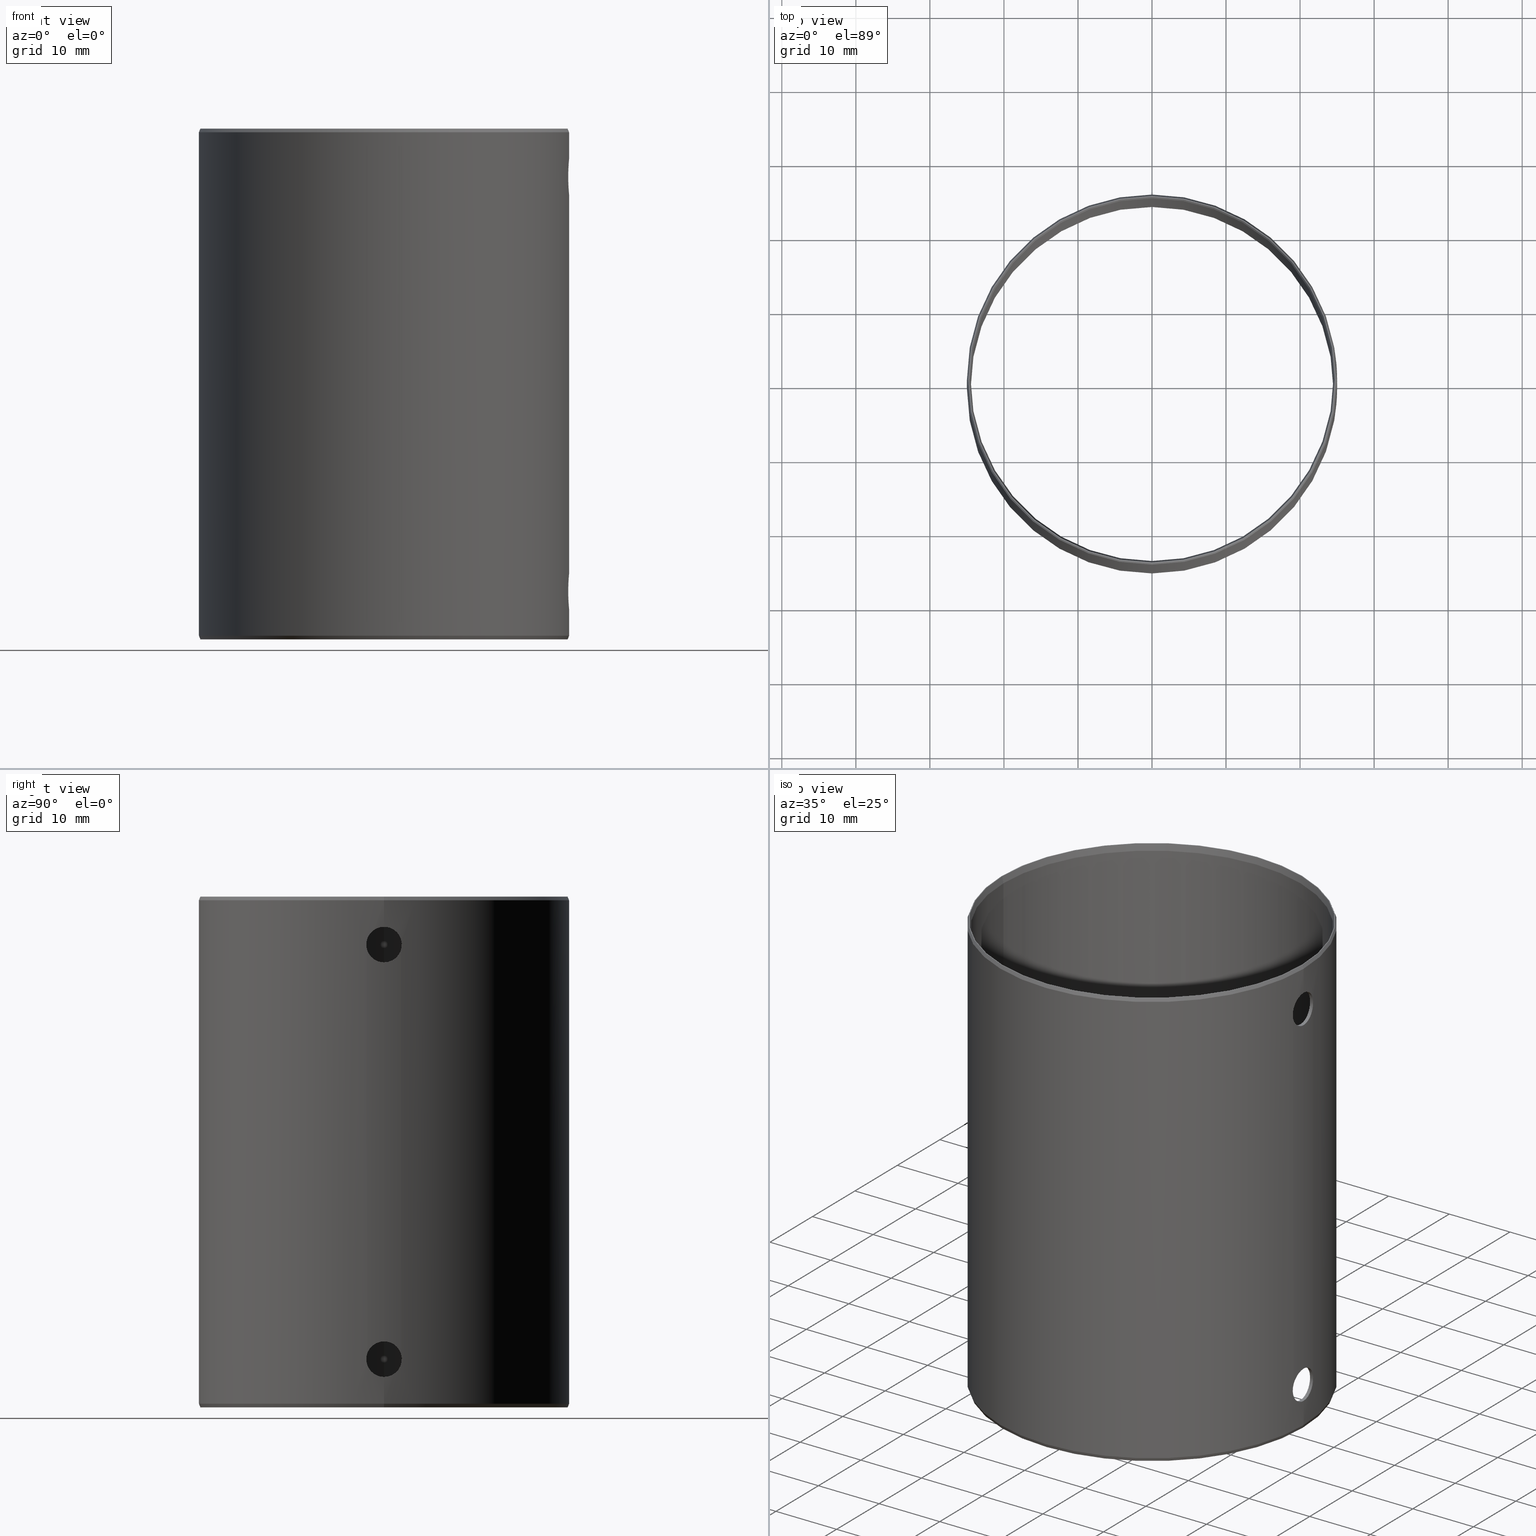
[diagram: canonical four-view strip — front | top / right | iso, engineering-drawing reading convention]
A machine part, canonical four-view strip (front | top / right | iso — engineering-drawing reading convention). The complete STEP part file that produces these views, byte-faithful:
ISO-10303-21;
HEADER;
FILE_DESCRIPTION (( 'STEP AP214' ),
    '1' );
FILE_NAME ('���.KRT741.STEP',
    '2014-06-30T17:47:19',
    ( '' ),
    ( '' ),
    'SwSTEP 2.0',
    'SolidWorks 2014',
    '' );
FILE_SCHEMA (( 'AUTOMOTIVE_DESIGN' ));
ENDSEC;

DATA;
#1 = AXIS2_PLACEMENT_3D ( 'NONE', #245, #699, #308 ) ;
#2 = DIRECTION ( 'NONE',  ( 1.000000000000000000, 0.0000000000000000000, 0.0000000000000000000 ) ) ;
#3 = CARTESIAN_POINT ( 'NONE',  ( 24.42580354938601100, -1.907319449440138600, 7.965276881055341800 ) ) ;
#4 = EDGE_CURVE ( 'NONE', #658, #528, #501, .T. ) ;
#5 = VECTOR ( 'NONE', #476, 1000.000000000000000 ) ;
#6 = CARTESIAN_POINT ( 'NONE',  ( 24.90680878649008200, -2.157434387432355400, 5.436881676382287600 ) ) ;
#7 = LINE ( 'NONE', #701, #413 ) ;
#8 = ORIENTED_EDGE ( 'NONE', *, *, #328, .T. ) ;
#9 = CARTESIAN_POINT ( 'NONE',  ( 24.38859995734895500, -2.336800860100901400, 7.130151552191206200 ) ) ;
#10 = ORIENTED_EDGE ( 'NONE', *, *, #564, .T. ) ;
#11 = CARTESIAN_POINT ( 'NONE',  ( 24.47082005790156200, -1.202507692141337600, 64.58292347193727800 ) ) ;
#12 = CARTESIAN_POINT ( 'NONE',  ( 24.45660832682248700, -1.463341451696374300, 64.40872384994622700 ) ) ;
#13 = CARTESIAN_POINT ( 'NONE',  ( 24.80000000000001100, 0.0000000000000000000, 0.0000000000000000000 ) ) ;
#14 = ADVANCED_FACE ( 'NONE', ( #311, #474 ), #86, .T. ) ;
#15 = CARTESIAN_POINT ( 'NONE',  ( 24.49844755136555500, -0.3158348504575804700, 60.11570415887334200 ) ) ;
#16 = CARTESIAN_POINT ( 'NONE',  ( 24.89083734895105200, -2.336804912568216000, 7.130137118677600600 ) ) ;
#17 = EDGE_CURVE ( 'NONE', #528, #645, #641, .T. ) ;
#18 = CIRCLE ( 'NONE', #264, 25.00000000000000000 ) ;
#19 = VERTEX_POINT ( 'NONE', #29 ) ;
#20 = DIRECTION ( 'NONE',  ( -1.000000000000000000, 0.0000000000000000000, 0.0000000000000000000 ) ) ;
#21 = DIRECTION ( 'NONE',  ( -1.000000000000000000, 0.0000000000000000000, 0.0000000000000000000 ) ) ;
#22 = CARTESIAN_POINT ( 'NONE',  ( 0.0000000000000000000, 0.0000000000000000000, 0.0000000000000000000 ) ) ;
#23 = EDGE_LOOP ( 'NONE', ( #432, #539, #485, #291 ) ) ;
#24 = CARTESIAN_POINT ( 'NONE',  ( 24.99852779915536900, 0.3123910132532942100, 4.115188051431481100 ) ) ;
#25 = ORIENTED_EDGE ( 'NONE', *, *, #207, .F. ) ;
#26 = CARTESIAN_POINT ( 'NONE',  ( 24.88452160933722700, 2.400121723904763600, 6.656665862864441500 ) ) ;
#27 = CARTESIAN_POINT ( 'NONE',  ( 24.41151110846013600, 2.082251539747878200, 61.29633365754183000 ) ) ;
#28 = CARTESIAN_POINT ( 'NONE',  ( 24.38955891432469900, 2.323864925475290100, 63.11976947958540800 ) ) ;
#29 = CARTESIAN_POINT ( 'NONE',  ( -24.50000000000000000, 0.0000000000000000000, 1.000000000000042600 ) ) ;
#30 = EDGE_CURVE ( 'NONE', #325, #302, #788, .T. ) ;
#31 = CARTESIAN_POINT ( 'NONE',  ( 24.92724166081458700, 1.907948605378058800, 5.035650817317736600 ) ) ;
#32 = CARTESIAN_POINT ( 'NONE',  ( 24.38215367992610500, 2.400121235163028600, 62.65668549765766900 ) ) ;
#33 = CARTESIAN_POINT ( 'NONE',  ( 25.00000000000000000, 3.061617015060971000E-015, 60.10000000000000100 ) ) ;
#34 = SURFACE_STYLE_FILL_AREA ( #617 ) ;
#35 = CONICAL_SURFACE ( 'NONE', #160, 24.50000000000000000, 0.1973955598498787500 ) ;
#36 = ORIENTED_EDGE ( 'NONE', *, *, #750, .T. ) ;
#37 = CARTESIAN_POINT ( 'NONE',  ( 24.43338947659767500, 1.808801199729553700, 8.085156302647970300 ) ) ;
#38 = CARTESIAN_POINT ( 'NONE',  ( 24.97770563932994000, 1.065398454173686100, 8.656234646903758500 ) ) ;
#39 = CARTESIAN_POINT ( 'NONE',  ( 24.91328647539418000, 2.082258795720676400, 61.29634526660252900 ) ) ;
#40 = CARTESIAN_POINT ( 'NONE',  ( 24.42559035520906400, 1.910012036205030100, 7.961651414167699900 ) ) ;
#41 = STYLED_ITEM ( 'NONE', ( #286 ), #584 ) ;
#42 = FACE_OUTER_BOUND ( 'NONE', #478, .T. ) ;
#43 = EDGE_CURVE ( 'NONE', #80, #766, #355, .T. ) ;
#44 = CARTESIAN_POINT ( 'NONE',  ( 24.50000000000000000, 3.000384657911015500E-015, 69.00000000000000000 ) ) ;
#45 = CARTESIAN_POINT ( 'NONE',  ( 0.0000000000000000000, 0.0000000000000000000, 0.4999999999999726900 ) ) ;
#46 = CARTESIAN_POINT ( 'NONE',  ( 24.90682330235476600, -2.157258275708513500, 63.56332931344044100 ) ) ;
#47 = LINE ( 'NONE', #409, #601 ) ;
#48 = ORIENTED_EDGE ( 'NONE', *, *, #564, .F. ) ;
#49 = ORIENTED_EDGE ( 'NONE', *, *, #500, .T. ) ;
#50 = DIRECTION ( 'NONE',  ( 1.000000000000000000, 0.0000000000000000000, 0.0000000000000000000 ) ) ;
#51 = EDGE_CURVE ( 'NONE', #217, #80, #454, .T. ) ;
#52 = CARTESIAN_POINT ( 'NONE',  ( 24.50000000000000000, 3.000384657911015500E-015, 68.00000000000015600 ) ) ;
#53 = CARTESIAN_POINT ( 'NONE',  ( -24.50000000000000000, 0.0000000000000000000, 68.00000000000015600 ) ) ;
#54 = CARTESIAN_POINT ( 'NONE',  ( 24.50000000000000000, -7.960204194457795500E-016, 8.900000000000000400 ) ) ;
#55 = ADVANCED_FACE ( 'NONE', ( #287 ), #399, .F. ) ;
#56 = DIRECTION ( 'NONE',  ( -0.3713906763541026100, 4.548224030302224200E-017, 0.9284766908852598600 ) ) ;
#57 = VECTOR ( 'NONE', #728, 1000.000000000000000 ) ;
#58 = EDGE_LOOP ( 'NONE', ( #372, #586 ) ) ;
#59 = EDGE_LOOP ( 'NONE', ( #292, #191, #768, #484 ) ) ;
#60 = CARTESIAN_POINT ( 'NONE',  ( 25.00000000000000000, -7.960204194457795500E-016, 8.900000000000000400 ) ) ;
#61 = CARTESIAN_POINT ( 'NONE',  ( 24.41146949563054100, -2.082763447756365200, 7.702913230893200200 ) ) ;
#62 = DIRECTION ( 'NONE',  ( 0.0000000000000000000, 0.0000000000000000000, -1.000000000000000000 ) ) ;
#63 = ORIENTED_EDGE ( 'NONE', *, *, #312, .T. ) ;
#64 = CARTESIAN_POINT ( 'NONE',  ( 24.38859995734896600, -2.336800860100908500, 63.13015155219122200 ) ) ;
#65 = CARTESIAN_POINT ( 'NONE',  ( 24.93478284463213500, -1.808009764021271300, 8.086060030250440200 ) ) ;
#66 = CARTESIAN_POINT ( 'NONE',  ( 24.49254669009270200, -0.6235709369443246400, 60.17711868633463000 ) ) ;
#67 = CARTESIAN_POINT ( 'NONE',  ( 24.94983958672400000, -1.586757515342943000, 8.307397663453445000 ) ) ;
#68 = FACE_OUTER_BOUND ( 'NONE', #667, .T. ) ;
#69 = ADVANCED_FACE ( 'NONE', ( #527 ), #431, .T. ) ;
#70 = VERTEX_POINT ( 'NONE', #60 ) ;
#71 = EDGE_LOOP ( 'NONE', ( #464, #117, #318, #243 ) ) ;
#72 = CARTESIAN_POINT ( 'NONE',  ( 24.41146949563054500, -2.082763447756369200, 63.70291323089320900 ) ) ;
#73 = CARTESIAN_POINT ( 'NONE',  ( 24.89184912457955800, -2.323100469349337800, 5.877229057580037400 ) ) ;
#74 = VERTEX_POINT ( 'NONE', #77 ) ;
#75 = DIRECTION ( 'NONE',  ( 1.000000000000000000, 0.0000000000000000000, 0.0000000000000000000 ) ) ;
#76 = FACE_OUTER_BOUND ( 'NONE', #71, .T. ) ;
#77 = CARTESIAN_POINT ( 'NONE',  ( 24.69999999999996700, 0.0000000000000000000, 69.00000000000000000 ) ) ;
#78 = FACE_OUTER_BOUND ( 'NONE', #510, .T. ) ;
#79 = ORIENTED_EDGE ( 'NONE', *, *, #787, .T. ) ;
#80 = VERTEX_POINT ( 'NONE', #637 ) ;
#81 = PRESENTATION_LAYER_ASSIGNMENT (  '', '', ( #41 ) ) ;
#82 = ORIENTED_EDGE ( 'NONE', *, *, #517, .T. ) ;
#83 = EDGE_CURVE ( 'NONE', #217, #506, #183, .T. ) ;
#84 = CARTESIAN_POINT ( 'NONE',  ( 24.50000000000000400, 0.1566461560698938200, 4.099999999999999600 ) ) ;
#85 = CARTESIAN_POINT ( 'NONE',  ( 24.38369107138436600, 2.384647135837939300, 62.81292241405778000 ) ) ;
#86 = PLANE ( 'NONE',  #544 ) ;
#87 = DIRECTION ( 'NONE',  ( 0.0000000000000000000, 0.0000000000000000000, 1.000000000000000000 ) ) ;
#88 = FACE_OUTER_BOUND ( 'NONE', #201, .T. ) ;
#89 = CARTESIAN_POINT ( 'NONE',  ( 24.90680033869109900, 2.157531980925978800, 7.562927324292854100 ) ) ;
#90 = CARTESIAN_POINT ( 'NONE',  ( 24.41150751000920800, -2.082281741112948800, 5.296445418222805100 ) ) ;
#91 = ORIENTED_EDGE ( 'NONE', *, *, #83, .F. ) ;
#92 = CARTESIAN_POINT ( 'NONE',  ( 24.50000000000000000, 3.000384675787022100E-015, 4.099999999999999600 ) ) ;
#93 = DIRECTION ( 'NONE',  ( -1.000000000000000000, 0.0000000000000000000, 0.0000000000000000000 ) ) ;
#94 = CARTESIAN_POINT ( 'NONE',  ( 24.38955891432469200, 2.323864925475296800, 7.119769479585399600 ) ) ;
#95 = EDGE_CURVE ( 'NONE', #361, #528, #7, .T. ) ;
#96 = CARTESIAN_POINT ( 'NONE',  ( 24.89619328610674400, 2.276670028200189900, 61.72444238341019200 ) ) ;
#97 = STYLED_ITEM ( 'NONE', ( #412 ), #491 ) ;
#98 = VECTOR ( 'NONE', #530, 1000.000000000000000 ) ;
#99 = CARTESIAN_POINT ( 'NONE',  ( 24.38964322231983000, 2.322982828804307100, 5.876929524469598000 ) ) ;
#100 = ORIENTED_EDGE ( 'NONE', *, *, #577, .T. ) ;
#101 = ORIENTED_EDGE ( 'NONE', *, *, #51, .T. ) ;
#102 = SURFACE_STYLE_USAGE ( .BOTH. , #271 ) ;
#103 =( NAMED_UNIT ( * ) SI_UNIT ( $, .STERADIAN. ) SOLID_ANGLE_UNIT ( ) );
#104 = CONICAL_SURFACE ( 'NONE', #616, 24.50000000000000000, 0.1973955598498787500 ) ;
#105 = DIRECTION ( 'NONE',  ( -0.0000000000000000000, -0.0000000000000000000, -1.000000000000000000 ) ) ;
#106 = ORIENTED_EDGE ( 'NONE', *, *, #598, .T. ) ;
#107 = DIRECTION ( 'NONE',  ( 0.0000000000000000000, 0.0000000000000000000, 1.000000000000000000 ) ) ;
#108 = EDGE_CURVE ( 'NONE', #487, #289, #758, .T. ) ;
#109 = CARTESIAN_POINT ( 'NONE',  ( 24.50000000000000000, 3.000384657911015500E-015, 69.00000000000000000 ) ) ;
#110 = AXIS2_PLACEMENT_3D ( 'NONE', #22, #513, #434 ) ;
#111 = DIRECTION ( 'NONE',  ( 1.000000000000000000, 0.0000000000000000000, 0.0000000000000000000 ) ) ;
#112 = EDGE_LOOP ( 'NONE', ( #458, #82, #344, #498, #562, #595, #268, #133 ) ) ;
#113 = ORIENTED_EDGE ( 'NONE', *, *, #707, .T. ) ;
#114 = DIRECTION ( 'NONE',  ( 0.0000000000000000000, 0.0000000000000000000, 1.000000000000000000 ) ) ;
#115 = CARTESIAN_POINT ( 'NONE',  ( 24.93469087965861100, -1.809364586544539100, 60.91528846702932000 ) ) ;
#116 = CONICAL_SURFACE ( 'NONE', #548, 25.00000000000000000, 0.3805063771123636800 ) ;
#117 = ORIENTED_EDGE ( 'NONE', *, *, #312, .F. ) ;
#118 = ADVANCED_FACE ( 'NONE', ( #504 ), #549, .T. ) ;
#119 = ORIENTED_EDGE ( 'NONE', *, *, #163, .T. ) ;
#120 = CARTESIAN_POINT ( 'NONE',  ( 24.95743015555597900, -1.464107681211960900, 60.59190603845464600 ) ) ;
#121 = APPLICATION_CONTEXT ( 'automotive_design' ) ;
#122 = MECHANICAL_DESIGN_GEOMETRIC_PRESENTATION_REPRESENTATION (  '', ( #41 ), #152 ) ;
#123 = CARTESIAN_POINT ( 'NONE',  ( 24.95747812043215700, -1.463332940315724300, 8.408730474432315900 ) ) ;
#124 = CARTESIAN_POINT ( 'NONE',  ( 25.00000000000000000, -0.1566809821527087900, 4.099999999999999600 ) ) ;
#125 = CARTESIAN_POINT ( 'NONE',  ( 24.42570443494877700, -1.908548929719064100, 61.03648304978811000 ) ) ;
#126 = ADVANCED_FACE ( 'NONE', ( #78 ), #780, .F. ) ;
#127 = CARTESIAN_POINT ( 'NONE',  ( 24.49259480514857400, -0.6215738987710169900, 64.82338609290462700 ) ) ;
#128 = CARTESIAN_POINT ( 'NONE',  ( 24.92729154330252700, -1.907322935467900700, 7.965272405578529600 ) ) ;
#129 = CARTESIAN_POINT ( 'NONE',  ( 24.42575234937275400, 1.907948699616059700, 5.035651715478032900 ) ) ;
#130 = CARTESIAN_POINT ( 'NONE',  ( 24.94993860879596400, -1.585298990248902500, 4.691150099845883900 ) ) ;
#131 = EDGE_CURVE ( 'NONE', #302, #325, #224, .T. ) ;
#132 = VECTOR ( 'NONE', #671, 1000.000000000000000 ) ;
#133 = ORIENTED_EDGE ( 'NONE', *, *, #787, .F. ) ;
#134 = DIRECTION ( 'NONE',  ( 1.000000000000000000, 0.0000000000000000000, 0.0000000000000000000 ) ) ;
#135 = CARTESIAN_POINT ( 'NONE',  ( 24.93488666603596100, 1.806581411025498500, 4.912317553406793100 ) ) ;
#136 = CARTESIAN_POINT ( 'NONE',  ( 24.43338947659767900, 1.808801199729551000, 64.08515630264796000 ) ) ;
#137 = CIRCLE ( 'NONE', #110, 24.70000000000000300 ) ;
#138 = ORIENTED_EDGE ( 'NONE', *, *, #226, .T. ) ;
#139 = DIRECTION ( 'NONE',  ( 0.0000000000000000000, 0.0000000000000000000, -1.000000000000000000 ) ) ;
#140 = CARTESIAN_POINT ( 'NONE',  ( 24.47196524663253200, 1.206838727512015400, 60.40208118236046900 ) ) ;
#141 = EDGE_CURVE ( 'NONE', #289, #552, #722, .T. ) ;
#142 = CARTESIAN_POINT ( 'NONE',  ( 24.99273967167542700, 0.6220482088764666100, 4.176646346112978100 ) ) ;
#143 = CARTESIAN_POINT ( 'NONE',  ( 24.49254669009269500, -0.6235709369443240800, 4.177118686334628400 ) ) ;
#144 = CARTESIAN_POINT ( 'NONE',  ( 0.0000000000000000000, 0.0000000000000000000, 68.50000000000002800 ) ) ;
#145 = CARTESIAN_POINT ( 'NONE',  ( 24.42570443494878800, -1.908548929719057200, 5.036483049788117200 ) ) ;
#146 = CARTESIAN_POINT ( 'NONE',  ( 24.44875390968204000, 1.587676087577083000, 8.306589860733083700 ) ) ;
#147 = CIRCLE ( 'NONE', #514, 24.80000000000001500 ) ;
#148 = CARTESIAN_POINT ( 'NONE',  ( 24.88602797503628800, 2.384647443085708800, 62.81291804850886300 ) ) ;
#149 = ORIENTED_EDGE ( 'NONE', *, *, #141, .F. ) ;
#150 = CARTESIAN_POINT ( 'NONE',  ( 24.89185976614051700, 2.322985733890047500, 61.87694049442362900 ) ) ;
#151 = DIRECTION ( 'NONE',  ( 1.000000000000000000, 0.0000000000000000000, 0.0000000000000000000 ) ) ;
#152 =( GEOMETRIC_REPRESENTATION_CONTEXT ( 3 ) GLOBAL_UNCERTAINTY_ASSIGNED_CONTEXT ( ( #604 ) ) GLOBAL_UNIT_ASSIGNED_CONTEXT ( ( #222, #545, #742 ) ) REPRESENTATION_CONTEXT ( 'NONE', 'WORKASPACE' ) );
#153 = FACE_BOUND ( 'NONE', #58, .T. ) ;
#154 = CARTESIAN_POINT ( 'NONE',  ( 24.99274324011628000, -0.6215614222012457700, 64.82338924481722100 ) ) ;
#155 = EDGE_CURVE ( 'NONE', #19, #433, #570, .T. ) ;
#156 = CARTESIAN_POINT ( 'NONE',  ( 0.0000000000000000000, 0.0000000000000000000, 0.4999999999999726900 ) ) ;
#157 = CARTESIAN_POINT ( 'NONE',  ( 24.98843731712242200, -0.7740445757105877100, 64.77719177326763100 ) ) ;
#158 =( NAMED_UNIT ( * ) PLANE_ANGLE_UNIT ( ) SI_UNIT ( $, .RADIAN. ) );
#159 = CARTESIAN_POINT ( 'NONE',  ( 24.88452789115881800, -2.400056590455626800, 62.34423272371462600 ) ) ;
#160 = AXIS2_PLACEMENT_3D ( 'NONE', #493, #752, #693 ) ;
#161 = LINE ( 'NONE', #338, #547 ) ;
#162 = ORIENTED_EDGE ( 'NONE', *, *, #707, .F. ) ;
#163 = EDGE_CURVE ( 'NONE', #766, #506, #333, .T. ) ;
#164 = DIRECTION ( 'NONE',  ( 1.000000000000000000, 0.0000000000000000000, -0.0000000000000000000 ) ) ;
#165 = ADVANCED_FACE ( 'NONE', ( #200 ), #536, .F. ) ;
#166 = CARTESIAN_POINT ( 'NONE',  ( 24.97131838510964000, -1.204238091543308600, 60.41811515997020600 ) ) ;
#167 = CARTESIAN_POINT ( 'NONE',  ( 24.90680878649008500, -2.157434387432358500, 61.43688167638229200 ) ) ;
#168 = CARTESIAN_POINT ( 'NONE',  ( 24.91314775540727300, 2.083908987949354000, 63.70078858769549900 ) ) ;
#169 = EDGE_LOOP ( 'NONE', ( #101, #10 ) ) ;
#170 = ORIENTED_EDGE ( 'NONE', *, *, #30, .T. ) ;
#171 = B_SPLINE_CURVE_WITH_KNOTS ( 'NONE', 3,
 ( #481, #421, #489, #687, #298, #486, #282, #123, #67, #65, #128, #354, #366, #16, #359, #682, #553, #73, #618, #6, #496, #290, #296, #130, #228, #749, #220, #285, #175, #626, #124, #566 ),
 .UNSPECIFIED., .F., .F.,
 ( 4, 2, 2, 2, 2, 2, 2, 2, 2, 2, 2, 2, 2, 2, 2, 4 ),
 ( 0.0000000000000000000, 0.0004692384122092192500, 0.0009384768244184385100, 0.001407715236627657700, 0.001876953648836877000, 0.002346192061046095700, 0.002815430473255312400, 0.003753907297673744100, 0.004223145709882960800, 0.004692384122092177500, 0.005161622534301394200, 0.005630860946510611800, 0.006100099358719829300, 0.006569337770929046900, 0.007038576183138264500, 0.007507814595347481200 ),
 .UNSPECIFIED. ) ;
#172 = CARTESIAN_POINT ( 'NONE',  ( 0.0000000000000000000, 0.0000000000000000000, 69.00000000000000000 ) ) ;
#173 = CARTESIAN_POINT ( 'NONE',  ( 24.43335481541210900, -1.809360301352433300, 60.91528340492516900 ) ) ;
#174 = AXIS2_PLACEMENT_3D ( 'NONE', #622, #754, #2 ) ;
#175 = CARTESIAN_POINT ( 'NONE',  ( 24.99269610355392100, -0.6235574177795527600, 4.177115368944690500 ) ) ;
#176 = EDGE_CURVE ( 'NONE', #233, #433, #463, .T. ) ;
#177 = CARTESIAN_POINT ( 'NONE',  ( 24.50000000000000000, -0.1586759503832634300, 64.90000000000002000 ) ) ;
#178 = FACE_OUTER_BOUND ( 'NONE', #23, .T. ) ;
#179 = ADVANCED_FACE ( 'NONE', ( #42 ), #340, .F. ) ;
#180 = DIRECTION ( 'NONE',  ( -0.1961161351381781600, 0.0000000000000000000, -0.9805806756909213300 ) ) ;
#181 = ORIENTED_EDGE ( 'NONE', *, *, #362, .F. ) ;
#182 = CLOSED_SHELL ( 'NONE', ( #229, #126, #275, #179, #737, #284, #411, #349, #69, #490, #14, #755, #118, #627, #55, #345, #613, #165 ) ) ;
#183 = LINE ( 'NONE', #784, #98 ) ;
#184 = EDGE_CURVE ( 'NONE', #433, #233, #137, .T. ) ;
#185 = CARTESIAN_POINT ( 'NONE',  ( 24.88452160933723100, 2.400121723904757900, 62.65666586286443600 ) ) ;
#186 = CARTESIAN_POINT ( 'NONE',  ( 24.42559035520906000, 1.910012036205026100, 63.96165141416768300 ) ) ;
#187 = CARTESIAN_POINT ( 'NONE',  ( 24.50000000000000700, 0.1566461560698932900, 60.10000000000000100 ) ) ;
#188 = CARTESIAN_POINT ( 'NONE',  ( 24.88602797503628800, 2.384647443085714500, 6.812918048508857200 ) ) ;
#189 = CARTESIAN_POINT ( 'NONE',  ( 25.00000000000000000, -6.938893903907228400E-015, 62.50000000000000000 ) ) ;
#190 = CARTESIAN_POINT ( 'NONE',  ( 24.38963235678006900, -2.323097617441011800, 5.877218032983101600 ) ) ;
#191 = ORIENTED_EDGE ( 'NONE', *, *, #51, .F. ) ;
#192 = ORIENTED_EDGE ( 'NONE', *, *, #388, .T. ) ;
#193 = CARTESIAN_POINT ( 'NONE',  ( 24.97128641964937400, 1.205016375846084600, 8.581538389534465200 ) ) ;
#194 = CARTESIAN_POINT ( 'NONE',  ( 24.50000000000000000, -7.960204194457795500E-016, 8.900000000000000400 ) ) ;
#195 = EDGE_CURVE ( 'NONE', #506, #440, #301, .T. ) ;
#196 = CARTESIAN_POINT ( 'NONE',  ( 24.49259097793635200, 0.6220691795854884600, 4.176651443060187300 ) ) ;
#197 = CARTESIAN_POINT ( 'NONE',  ( 24.38373468376589800, 2.384203977574828000, 6.183713051622882900 ) ) ;
#198 = CARTESIAN_POINT ( 'NONE',  ( 24.50000000000000700, 0.3172775841286012400, 8.900000000000002100 ) ) ;
#199 = CIRCLE ( 'NONE', #416, 25.00000000000000000 ) ;
#200 = FACE_OUTER_BOUND ( 'NONE', #795, .T. ) ;
#201 = EDGE_LOOP ( 'NONE', ( #619, #373, #572, #389 ) ) ;
#202 = ORIENTED_EDGE ( 'NONE', *, *, #238, .F. ) ;
#203 = PLANE ( 'NONE',  #310 ) ;
#204 = CARTESIAN_POINT ( 'NONE',  ( 24.97774248692006800, -1.064671223454409100, 64.65666932174893600 ) ) ;
#205 =( GEOMETRIC_REPRESENTATION_CONTEXT ( 3 ) GLOBAL_UNCERTAINTY_ASSIGNED_CONTEXT ( ( #597 ) ) GLOBAL_UNIT_ASSIGNED_CONTEXT ( ( #537, #158, #210 ) ) REPRESENTATION_CONTEXT ( 'NONE', 'WORKASPACE' ) );
#206 = CARTESIAN_POINT ( 'NONE',  ( 24.93478284463212800, -1.808009764021275100, 64.08606003025042200 ) ) ;
#207 = EDGE_CURVE ( 'NONE', #361, #552, #535, .T. ) ;
#208 = FACE_OUTER_BOUND ( 'NONE', #234, .T. ) ;
#209 = ORIENTED_EDGE ( 'NONE', *, *, #606, .T. ) ;
#210 =( NAMED_UNIT ( * ) SI_UNIT ( $, .STERADIAN. ) SOLID_ANGLE_UNIT ( ) );
#211 = PRODUCT_DEFINITION_CONTEXT ( 'detailed design', #417, 'design' ) ;
#212 = CARTESIAN_POINT ( 'NONE',  ( 0.0000000000000000000, 0.0000000000000000000, 69.00000000000000000 ) ) ;
#213 = CARTESIAN_POINT ( 'NONE',  ( 25.00000000000000000, 3.061616997868383000E-015, 69.00000000000000000 ) ) ;
#214 = DIRECTION ( 'NONE',  ( 1.000000000000000000, 0.0000000000000000000, 0.0000000000000000000 ) ) ;
#215 = CARTESIAN_POINT ( 'NONE',  ( 24.97777575192123900, -1.063896460731817500, 60.34294669262610000 ) ) ;
#216 = FACE_OUTER_BOUND ( 'NONE', #563, .T. ) ;
#217 = VERTEX_POINT ( 'NONE', #759 ) ;
#218 = APPLICATION_PROTOCOL_DEFINITION ( 'draft international standard', 'automotive_design', 1998, #417 ) ;
#219 = ORIENTED_EDGE ( 'NONE', *, *, #639, .F. ) ;
#220 = CARTESIAN_POINT ( 'NONE',  ( 24.97777575192123600, -1.063896460731816000, 4.342946692626102700 ) ) ;
#221 = CARTESIAN_POINT ( 'NONE',  ( 24.45660832682250100, -1.463341451696367900, 8.408723849946225600 ) ) ;
#222 =( LENGTH_UNIT ( ) NAMED_UNIT ( * ) SI_UNIT ( .MILLI., .METRE. ) );
#223 = VERTEX_POINT ( 'NONE', #33 ) ;
#224 = B_SPLINE_CURVE_WITH_KNOTS ( 'NONE', 3,
 ( #297, #177, #628, #127, #227, #565, #11, #12, #235, #625, #753, #72, #293, #64, #556, #488, #621, #288, #424, #492, #558, #125, #173, #561, #692, #230, #365, #368, #66, #15, #495, #363 ),
 .UNSPECIFIED., .F., .F.,
 ( 4, 2, 2, 2, 2, 2, 2, 2, 2, 2, 2, 2, 2, 2, 2, 4 ),
 ( 0.0000000000000000000, 0.0004692495845450792600, 0.0009384991690901587300, 0.001407748753635238100, 0.001876998338180317900, 0.002346247922725397000, 0.002815497507270476200, 0.003753996676360634900, 0.004223246260905714500, 0.004692495845450793200, 0.005161745429995872800, 0.005630995014540951500, 0.006100244599086031100, 0.006569494183631110700, 0.007038743768176189400, 0.007507993352721268100 ),
 .UNSPECIFIED. ) ;
#225 = CARTESIAN_POINT ( 'NONE',  ( 24.92708216892714300, 1.910021543429558900, 63.96163867150225700 ) ) ;
#226 = EDGE_CURVE ( 'NONE', #74, #242, #609, .T. ) ;
#227 = CARTESIAN_POINT ( 'NONE',  ( 24.48820078453336200, -0.7740593033462914700, 64.77718672583307600 ) ) ;
#228 = CARTESIAN_POINT ( 'NONE',  ( 24.95743015555597900, -1.464107681211956400, 4.591906038454635700 ) ) ;
#229 = ADVANCED_FACE ( 'NONE', ( #632 ), #438, .F. ) ;
#230 = CARTESIAN_POINT ( 'NONE',  ( 24.47073192606200800, -1.204247393120301500, 60.41812067930364100 ) ) ;
#231 = CARTESIAN_POINT ( 'NONE',  ( 24.97128641964937400, 1.205016375846076800, 64.58153838953445800 ) ) ;
#232 = LINE ( 'NONE', #44, #132 ) ;
#233 = VERTEX_POINT ( 'NONE', #378 ) ;
#234 = EDGE_LOOP ( 'NONE', ( #353, #673, #369, #533, #202, #341, #263, #529 ) ) ;
#235 = CARTESIAN_POINT ( 'NONE',  ( 24.44881354310747700, -1.586761734104943100, 64.30739358407541300 ) ) ;
#236 = CARTESIAN_POINT ( 'NONE',  ( 24.93472474480771000, 1.808807287848826600, 64.08515009080852600 ) ) ;
#237 = AXIS2_PLACEMENT_3D ( 'NONE', #375, #429, #499 ) ;
#238 = EDGE_CURVE ( 'NONE', #361, #70, #694, .T. ) ;
#239 = DIRECTION ( 'NONE',  ( -1.000000000000000000, 0.0000000000000000000, 0.0000000000000000000 ) ) ;
#240 = LINE ( 'NONE', #634, #676 ) ;
#241 = EDGE_LOOP ( 'NONE', ( #48, #443, #304, #91 ) ) ;
#242 = VERTEX_POINT ( 'NONE', #395 ) ;
#243 = ORIENTED_EDGE ( 'NONE', *, *, #388, .F. ) ;
#244 = DIRECTION ( 'NONE',  ( 1.000000000000000000, 0.0000000000000000000, 0.0000000000000000000 ) ) ;
#245 = CARTESIAN_POINT ( 'NONE',  ( 25.00000000000000000, -7.960204194457795500E-016, 6.500000000000000000 ) ) ;
#246 = DIRECTION ( 'NONE',  ( -1.000000000000000000, 0.0000000000000000000, 0.0000000000000000000 ) ) ;
#247 = CARTESIAN_POINT ( 'NONE',  ( 24.38964322231983300, 2.322982828804302600, 61.87692952446958800 ) ) ;
#248 = SURFACE_STYLE_FILL_AREA ( #734 ) ;
#249 = CARTESIAN_POINT ( 'NONE',  ( 24.89177715393288200, 2.323867879430600700, 7.119757381439341300 ) ) ;
#250 = AXIS2_PLACEMENT_3D ( 'NONE', #674, #274, #214 ) ;
#251 = CARTESIAN_POINT ( 'NONE',  ( 24.42575234937275400, 1.907948699616057300, 61.03565171547803200 ) ) ;
#252 = CARTESIAN_POINT ( 'NONE',  ( 24.50000000000000700, 0.3172775841285949700, 64.90000000000002000 ) ) ;
#253 = ORIENTED_EDGE ( 'NONE', *, *, #108, .T. ) ;
#254 = DIRECTION ( 'NONE',  ( 1.000000000000000000, 0.0000000000000000000, 0.0000000000000000000 ) ) ;
#255 = DIRECTION ( 'NONE',  ( -0.0000000000000000000, -0.0000000000000000000, -1.000000000000000000 ) ) ;
#256 = CARTESIAN_POINT ( 'NONE',  ( 24.47732152897452500, -1.063902268404216300, 4.342949835593287000 ) ) ;
#257 = CARTESIAN_POINT ( 'NONE',  ( 24.92708216892713900, 1.910021543429563300, 7.961638671502244700 ) ) ;
#258 = CARTESIAN_POINT ( 'NONE',  ( 24.49353724681168700, 0.6324934365665536600, 8.836158783216284000 ) ) ;
#259 = CARTESIAN_POINT ( 'NONE',  ( 24.47196524663252900, 1.206838727512015800, 4.402081182360468000 ) ) ;
#260 = CIRCLE ( 'NONE', #250, 24.50000000000000000 ) ;
#261 = ORIENTED_EDGE ( 'NONE', *, *, #95, .T. ) ;
#262 = CARTESIAN_POINT ( 'NONE',  ( 24.40489148465764700, 2.157526364655349300, 7.562937783976222400 ) ) ;
#263 = ORIENTED_EDGE ( 'NONE', *, *, #469, .T. ) ;
#264 = AXIS2_PLACEMENT_3D ( 'NONE', #461, #466, #725 ) ;
#265 =( LENGTH_UNIT ( ) NAMED_UNIT ( * ) SI_UNIT ( .MILLI., .METRE. ) );
#266 = EDGE_CURVE ( 'NONE', #528, #658, #540, .T. ) ;
#267 = DIRECTION ( 'NONE',  ( -1.000000000000000000, 0.0000000000000000000, 0.0000000000000000000 ) ) ;
#268 = ORIENTED_EDGE ( 'NONE', *, *, #362, .T. ) ;
#269 = CARTESIAN_POINT ( 'NONE',  ( 25.00000000000000000, 3.061616997868383000E-015, 0.4999999999999726900 ) ) ;
#270 = CARTESIAN_POINT ( 'NONE',  ( 25.00000000000000000, 3.061616997868383000E-015, 69.00000000000000000 ) ) ;
#271 = SURFACE_SIDE_STYLE ('',( #248 ) ) ;
#272 = CARTESIAN_POINT ( 'NONE',  ( 0.0000000000000000000, 0.0000000000000000000, 68.00000000000015600 ) ) ;
#273 = CARTESIAN_POINT ( 'NONE',  ( 0.0000000000000000000, 0.0000000000000000000, 69.00000000000000000 ) ) ;
#274 = DIRECTION ( 'NONE',  ( 0.0000000000000000000, 0.0000000000000000000, 1.000000000000000000 ) ) ;
#275 = ADVANCED_FACE ( 'NONE', ( #178 ), #104, .F. ) ;
#276 = EDGE_CURVE ( 'NONE', #223, #406, #448, .T. ) ;
#277 = ORIENTED_EDGE ( 'NONE', *, *, #469, .F. ) ;
#278 = CARTESIAN_POINT ( 'NONE',  ( 0.0000000000000000000, 0.0000000000000000000, 0.4999999999999726900 ) ) ;
#279 = CARTESIAN_POINT ( 'NONE',  ( 24.98846425448591900, -0.7731826399380984400, 60.22251382983150600 ) ) ;
#280 = CARTESIAN_POINT ( 'NONE',  ( 24.49845975203917400, -0.3146810743289630800, 8.884418769804302200 ) ) ;
#281 = FILL_AREA_STYLE_COLOUR ( '', #783 ) ;
#282 = CARTESIAN_POINT ( 'NONE',  ( 24.97140484761392900, -1.202496304620575200, 8.582930136997767100 ) ) ;
#283 = CARTESIAN_POINT ( 'NONE',  ( 24.44881354310748700, -1.586761734104935200, 8.307393584075436300 ) ) ;
#284 = ADVANCED_FACE ( 'NONE', ( #710 ), #739, .T. ) ;
#285 = CARTESIAN_POINT ( 'NONE',  ( 24.98846425448591900, -0.7731826399380978800, 4.222513829831515700 ) ) ;
#286 = PRESENTATION_STYLE_ASSIGNMENT (( #480 ) ) ;
#287 = FACE_OUTER_BOUND ( 'NONE', #573, .T. ) ;
#288 = CARTESIAN_POINT ( 'NONE',  ( 24.38963235678005500, -2.323097617441018500, 61.87721803298310200 ) ) ;
#289 = VERTEX_POINT ( 'NONE', #13 ) ;
#290 = CARTESIAN_POINT ( 'NONE',  ( 24.92719432543051300, -1.908553743024077800, 5.036489025316491600 ) ) ;
#291 = ORIENTED_EDGE ( 'NONE', *, *, #680, .F. ) ;
#292 = ORIENTED_EDGE ( 'NONE', *, *, #43, .F. ) ;
#293 = CARTESIAN_POINT ( 'NONE',  ( 24.40491494433868200, -2.157252441054829700, 63.56334106249468600 ) ) ;
#294 = ORIENTED_EDGE ( 'NONE', *, *, #651, .T. ) ;
#295 = AXIS2_PLACEMENT_3D ( 'NONE', #374, #300, #568 ) ;
#296 = CARTESIAN_POINT ( 'NONE',  ( 24.93469087965861100, -1.809364586544532900, 4.915288467029322200 ) ) ;
#297 = CARTESIAN_POINT ( 'NONE',  ( 24.50000000000000000, -6.938893903907228400E-015, 64.90000000000000600 ) ) ;
#298 = CARTESIAN_POINT ( 'NONE',  ( 24.98843731712241800, -0.7740445757105802700, 8.777191773267629700 ) ) ;
#299 = VECTOR ( 'NONE', #105, 1000.000000000000000 ) ;
#300 = DIRECTION ( 'NONE',  ( -0.0000000000000000000, -0.0000000000000000000, -1.000000000000000000 ) ) ;
#301 = LINE ( 'NONE', #449, #430 ) ;
#302 = VERTEX_POINT ( 'NONE', #691 ) ;
#303 = ORIENTED_EDGE ( 'NONE', *, *, #680, .T. ) ;
#304 = ORIENTED_EDGE ( 'NONE', *, *, #532, .F. ) ;
#305 = CARTESIAN_POINT ( 'NONE',  ( 25.00000000000000000, -6.938893903907228400E-015, 64.90000000000000600 ) ) ;
#306 = DIRECTION ( 'NONE',  ( 0.0000000000000000000, 0.0000000000000000000, 1.000000000000000000 ) ) ;
#307 = CARTESIAN_POINT ( 'NONE',  ( 24.50000000000000000, 3.000384657911015500E-015, 69.00000000000000000 ) ) ;
#308 = DIRECTION ( 'NONE',  ( 0.0000000000000000000, 0.0000000000000000000, 1.000000000000000000 ) ) ;
#309 = LINE ( 'NONE', #467, #5 ) ;
#310 = AXIS2_PLACEMENT_3D ( 'NONE', #668, #114, #164 ) ;
#311 = FACE_BOUND ( 'NONE', #455, .T. ) ;
#312 = EDGE_CURVE ( 'NONE', #289, #487, #569, .T. ) ;
#313 = DIRECTION ( 'NONE',  ( 0.0000000000000000000, 0.0000000000000000000, 1.000000000000000000 ) ) ;
#314 = CARTESIAN_POINT ( 'NONE',  ( 24.47724968366754400, 1.065411481757196000, 64.65622814805495000 ) ) ;
#315 = CARTESIAN_POINT ( 'NONE',  ( 0.0000000000000000000, 0.0000000000000000000, 69.00000000000000000 ) ) ;
#316 = DIRECTION ( 'NONE',  ( 1.000000000000000000, 0.0000000000000000000, 0.0000000000000000000 ) ) ;
#317 = CARTESIAN_POINT ( 'NONE',  ( 24.40502357541037500, 2.156036257598050300, 5.434061330933637600 ) ) ;
#318 = ORIENTED_EDGE ( 'NONE', *, *, #141, .T. ) ;
#319 = CARTESIAN_POINT ( 'NONE',  ( 0.0000000000000000000, 0.0000000000000000000, 0.0000000000000000000 ) ) ;
#320 = CARTESIAN_POINT ( 'NONE',  ( 0.0000000000000000000, 0.0000000000000000000, 69.00000000000000000 ) ) ;
#321 = ORIENTED_EDGE ( 'NONE', *, *, #155, .T. ) ;
#322 = CARTESIAN_POINT ( 'NONE',  ( 24.50000000000000000, 3.000384675787022100E-015, 4.099999999999999600 ) ) ;
#323 = CARTESIAN_POINT ( 'NONE',  ( 24.45639106743687600, 1.467020564352039500, 8.405969377969761100 ) ) ;
#324 = CARTESIAN_POINT ( 'NONE',  ( 24.99366688715195700, 0.6324768918812916400, 8.836163490830976700 ) ) ;
#325 = VERTEX_POINT ( 'NONE', #689 ) ;
#326 = PRODUCT_DEFINITION_SHAPE ( 'NONE', 'NONE',  #723 ) ;
#327 = CARTESIAN_POINT ( 'NONE',  ( 24.98844668141205700, 0.7735741257863489900, 60.22271791991430200 ) ) ;
#328 = EDGE_CURVE ( 'NONE', #70, #361, #171, .T. ) ;
#329 = CARTESIAN_POINT ( 'NONE',  ( 24.99999999999998900, 0.3172695563085066700, 8.899999999999996800 ) ) ;
#330 = PRESENTATION_LAYER_ASSIGNMENT (  '', '', ( #97 ) ) ;
#331 = CARTESIAN_POINT ( 'NONE',  ( 25.00000000000000000, 3.061617015060971000E-015, 60.10000000000000100 ) ) ;
#332 = CIRCLE ( 'NONE', #596, 24.69999999999996700 ) ;
#333 = CIRCLE ( 'NONE', #711, 25.00000000000000000 ) ;
#334 = DIRECTION ( 'NONE',  ( -1.000000000000000000, 0.0000000000000000000, 0.0000000000000000000 ) ) ;
#335 = DIRECTION ( 'NONE',  ( -1.000000000000000000, 0.0000000000000000000, 0.0000000000000000000 ) ) ;
#336 = CARTESIAN_POINT ( 'NONE',  ( 24.94983958672399600, -1.586757515342945800, 64.30739766345344300 ) ) ;
#337 = AXIS2_PLACEMENT_3D ( 'NONE', #546, #394, #782 ) ;
#338 = CARTESIAN_POINT ( 'NONE',  ( 24.70000000000000300, 3.024877593893963000E-015, 0.0000000000000000000 ) ) ;
#339 = CIRCLE ( 'NONE', #531, 24.50000000000000000 ) ;
#340 = CONICAL_SURFACE ( 'NONE', #567, 24.70000000000000300, 0.1973955598498747500 ) ;
#341 = ORIENTED_EDGE ( 'NONE', *, *, #207, .T. ) ;
#342 = CARTESIAN_POINT ( 'NONE',  ( 25.00000000000000000, -6.644978672111863900E-015, 60.10000000000000100 ) ) ;
#343 = CARTESIAN_POINT ( 'NONE',  ( -25.00000000000000000, 0.0000000000000000000, 0.4999999999999726900 ) ) ;
#344 = ORIENTED_EDGE ( 'NONE', *, *, #131, .T. ) ;
#345 = ADVANCED_FACE ( 'NONE', ( #216 ), #35, .F. ) ;
#346 = CARTESIAN_POINT ( 'NONE',  ( 25.00000000000000000, 3.061616997868383000E-015, 68.50000000000002800 ) ) ;
#347 = DIRECTION ( 'NONE',  ( -0.0000000000000000000, -0.0000000000000000000, 1.000000000000000000 ) ) ;
#348 = CARTESIAN_POINT ( 'NONE',  ( 24.50000000000000000, 3.000384657911015500E-015, 1.000000000000042600 ) ) ;
#349 = ADVANCED_FACE ( 'NONE', ( #208 ), #405, .T. ) ;
#350 = CARTESIAN_POINT ( 'NONE',  ( 24.92719432543050900, -1.908553743024082900, 61.03648902531649200 ) ) ;
#351 = CARTESIAN_POINT ( 'NONE',  ( 24.47082005790156200, -1.202507692141330500, 8.582923471937288400 ) ) ;
#352 = DIRECTION ( 'NONE',  ( 1.000000000000000000, 0.0000000000000000000, 0.0000000000000000000 ) ) ;
#353 = ORIENTED_EDGE ( 'NONE', *, *, #532, .T. ) ;
#354 = CARTESIAN_POINT ( 'NONE',  ( 24.91324600546113300, -2.082766894383097700, 7.702907339063805200 ) ) ;
#355 = LINE ( 'NONE', #770, #610 ) ;
#356 = CARTESIAN_POINT ( 'NONE',  ( 24.43344847942907800, -1.808007707268007000, 8.086061946783996000 ) ) ;
#357 = ORIENTED_EDGE ( 'NONE', *, *, #437, .F. ) ;
#358 = AXIS2_PLACEMENT_3D ( 'NONE', #45, #347, #111 ) ;
#359 = CARTESIAN_POINT ( 'NONE',  ( 24.88454431040539600, -2.399886346573843800, 6.814143041514102900 ) ) ;
#360 = CARTESIAN_POINT ( 'NONE',  ( 24.50000000000000000, -7.960204194457795500E-016, 8.900000000000000400 ) ) ;
#361 = VERTEX_POINT ( 'NONE', #756 ) ;
#362 = EDGE_CURVE ( 'NONE', #645, #19, #757, .T. ) ;
#363 = CARTESIAN_POINT ( 'NONE',  ( 24.50000000000000000, 3.000384675787416500E-015, 60.10000000000000100 ) ) ;
#364 = CARTESIAN_POINT ( 'NONE',  ( 24.89608564858516400, 2.277842562262350200, 63.27213470780221600 ) ) ;
#365 = CARTESIAN_POINT ( 'NONE',  ( 24.47732152897451700, -1.063902268404217400, 60.34294983559329500 ) ) ;
#366 = CARTESIAN_POINT ( 'NONE',  ( 24.90682330235475600, -2.157258275708509500, 7.563329313440439300 ) ) ;
#367 = ORIENTED_EDGE ( 'NONE', *, *, #155, .F. ) ;
#368 = CARTESIAN_POINT ( 'NONE',  ( 24.48822829805678600, -0.7731960241527065000, 60.22251863745997700 ) ) ;
#369 = ORIENTED_EDGE ( 'NONE', *, *, #276, .F. ) ;
#370 = PRODUCT_RELATED_PRODUCT_CATEGORY ( 'part', '', ( #400 ) ) ;
#371 = DIRECTION ( 'NONE',  ( -1.000000000000000000, 0.0000000000000000000, 0.0000000000000000000 ) ) ;
#372 = ORIENTED_EDGE ( 'NONE', *, *, #184, .T. ) ;
#373 = ORIENTED_EDGE ( 'NONE', *, *, #276, .T. ) ;
#374 = CARTESIAN_POINT ( 'NONE',  ( 0.0000000000000000000, 0.0000000000000000000, 1.000000000000042600 ) ) ;
#375 = CARTESIAN_POINT ( 'NONE',  ( 0.0000000000000000000, 0.0000000000000000000, 69.00000000000000000 ) ) ;
#376 = CIRCLE ( 'NONE', #358, 25.00000000000000000 ) ;
#377 = VECTOR ( 'NONE', #748, 999.9999999999998900 ) ;
#378 = CARTESIAN_POINT ( 'NONE',  ( 24.70000000000000300, 3.024877593893963000E-015, 0.0000000000000000000 ) ) ;
#379 = CARTESIAN_POINT ( 'NONE',  ( 25.00000000000000400, 0.1566443434529316300, 4.099999999999998800 ) ) ;
#380 = CARTESIAN_POINT ( 'NONE',  ( 24.89185976614051300, 2.322985733890050600, 5.876940494423617900 ) ) ;
#381 = CARTESIAN_POINT ( 'NONE',  ( 24.45659574403835300, 1.474507113349707900, 60.58069917553353200 ) ) ;
#382 = DIRECTION ( 'NONE',  ( 0.0000000000000000000, 0.0000000000000000000, 1.000000000000000000 ) ) ;
#383 = DIRECTION ( 'NONE',  ( -0.0000000000000000000, -0.0000000000000000000, -1.000000000000000000 ) ) ;
#384 = AXIS2_PLACEMENT_3D ( 'NONE', #792, #267, #670 ) ;
#385 = CARTESIAN_POINT ( 'NONE',  ( 24.38217768668483700, 2.399877344770530800, 62.33962226241188600 ) ) ;
#386 = VECTOR ( 'NONE', #679, 1000.000000000000000 ) ;
#387 = CARTESIAN_POINT ( 'NONE',  ( 24.44891537450626700, -1.585291533492605000, 4.691143416228797500 ) ) ;
#388 = EDGE_CURVE ( 'NONE', #440, #552, #199, .T. ) ;
#389 = ORIENTED_EDGE ( 'NONE', *, *, #30, .F. ) ;
#390 = CARTESIAN_POINT ( 'NONE',  ( 25.00000000000000000, 3.061616997868383000E-015, 69.00000000000000000 ) ) ;
#391 = DIRECTION ( 'NONE',  ( -0.0000000000000000000, -0.0000000000000000000, -1.000000000000000000 ) ) ;
#392 = CARTESIAN_POINT ( 'NONE',  ( 24.48822829805678600, -0.7731960241527060500, 4.222518637459985200 ) ) ;
#393 = ORIENTED_EDGE ( 'NONE', *, *, #639, .T. ) ;
#394 = DIRECTION ( 'NONE',  ( -0.0000000000000000000, -0.0000000000000000000, -1.000000000000000000 ) ) ;
#395 = CARTESIAN_POINT ( 'NONE',  ( -24.69999999999996700, 3.024877593893958600E-015, 69.00000000000000000 ) ) ;
#396 = CARTESIAN_POINT ( 'NONE',  ( 24.95746531117464100, 1.474504327697439000, 60.58069680062431700 ) ) ;
#397 = CARTESIAN_POINT ( 'NONE',  ( 24.43355421998985800, 1.806582362493937900, 4.912318707027452500 ) ) ;
#398 = CARTESIAN_POINT ( 'NONE',  ( 24.88454522685664800, 2.399876844268713100, 62.33962664033745700 ) ) ;
#399 = CONICAL_SURFACE ( 'NONE', #591, 24.70000000000000300, 0.1973955598498747500 ) ;
#400 = PRODUCT ( '���.KRT741', '���.KRT741', '', ( #551 ) ) ;
#401 = CARTESIAN_POINT ( 'NONE',  ( 0.0000000000000000000, 0.0000000000000000000, 0.0000000000000000000 ) ) ;
#402 = DIRECTION ( 'NONE',  ( -0.0000000000000000000, -0.0000000000000000000, -1.000000000000000000 ) ) ;
#403 = DIRECTION ( 'NONE',  ( -0.0000000000000000000, -0.0000000000000000000, 1.000000000000000000 ) ) ;
#404 = CARTESIAN_POINT ( 'NONE',  ( 24.92729154330252700, -1.907322935467908200, 63.96527240557853100 ) ) ;
#405 = CYLINDRICAL_SURFACE ( 'NONE', #760, 25.00000000000000000 ) ;
#406 = VERTEX_POINT ( 'NONE', #305 ) ;
#407 = DIRECTION ( 'NONE',  ( 0.0000000000000000000, 0.0000000000000000000, 1.000000000000000000 ) ) ;
#408 = CARTESIAN_POINT ( 'NONE',  ( -24.80000000000001100, 3.049370529876910500E-015, 0.0000000000000000000 ) ) ;
#409 = CARTESIAN_POINT ( 'NONE',  ( 24.50000000000000000, 0.0000000000000000000, 68.00000000000015600 ) ) ;
#410 = CARTESIAN_POINT ( 'NONE',  ( 24.88604947718394200, -2.384426566425551300, 62.18512004392492500 ) ) ;
#411 = ADVANCED_FACE ( 'NONE', ( #702 ), #721, .F. ) ;
#412 = PRESENTATION_STYLE_ASSIGNMENT (( #102 ) ) ;
#413 = VECTOR ( 'NONE', #648, 1000.000000000000000 ) ;
#414 = CARTESIAN_POINT ( 'NONE',  ( -24.50000000000000000, 3.000384657911015500E-015, 68.00000000000015600 ) ) ;
#415 = ORIENTED_EDGE ( 'NONE', *, *, #131, .F. ) ;
#416 = AXIS2_PLACEMENT_3D ( 'NONE', #630, #697, #75 ) ;
#417 = APPLICATION_CONTEXT ( 'automotive_design' ) ;
#418 = CARTESIAN_POINT ( 'NONE',  ( 25.00000000000000000, -6.938893903907228400E-015, 64.90000000000000600 ) ) ;
#419 = DIRECTION ( 'NONE',  ( -1.000000000000000000, 0.0000000000000000000, 0.0000000000000000000 ) ) ;
#420 = CARTESIAN_POINT ( 'NONE',  ( 24.48820078453335800, -0.7740593033462839200, 8.777186725833065100 ) ) ;
#421 = CARTESIAN_POINT ( 'NONE',  ( 25.00000000000000000, -0.1586718824114786400, 8.899999999999998600 ) ) ;
#422 = CARTESIAN_POINT ( 'NONE',  ( 24.94978116682852900, 1.587671764335767000, 64.30659430523188300 ) ) ;
#423 = COLOUR_RGB ( '',0.7529411764705882200, 0.7529411764705882200, 0.7529411764705882200 ) ;
#424 = CARTESIAN_POINT ( 'NONE',  ( 24.39396579814591300, -2.277735970484744900, 61.72756004712811500 ) ) ;
#425 = DIRECTION ( 'NONE',  ( -0.0000000000000000000, -0.0000000000000000000, -1.000000000000000000 ) ) ;
#426 = EDGE_CURVE ( 'NONE', #406, #302, #240, .T. ) ;
#427 = CARTESIAN_POINT ( 'NONE',  ( 24.41151110846014300, 2.082251539747880900, 5.296333657541834100 ) ) ;
#428 = CARTESIAN_POINT ( 'NONE',  ( 24.95726503561599700, 1.467014608053332600, 64.40597341873413500 ) ) ;
#429 = DIRECTION ( 'NONE',  ( -0.0000000000000000000, -0.0000000000000000000, -1.000000000000000000 ) ) ;
#430 = VECTOR ( 'NONE', #772, 1000.000000000000000 ) ;
#431 = CYLINDRICAL_SURFACE ( 'NONE', #508, 25.00000000000000000 ) ;
#432 = ORIENTED_EDGE ( 'NONE', *, *, #735, .F. ) ;
#433 = VERTEX_POINT ( 'NONE', #729 ) ;
#434 = DIRECTION ( 'NONE',  ( 1.000000000000000000, 0.0000000000000000000, 0.0000000000000000000 ) ) ;
#435 = CARTESIAN_POINT ( 'NONE',  ( 0.0000000000000000000, 0.0000000000000000000, 69.00000000000000000 ) ) ;
#436 = CARTESIAN_POINT ( 'NONE',  ( 24.97252710090108600, 1.206825632060222200, 4.402073810815897700 ) ) ;
#437 = EDGE_CURVE ( 'NONE', #766, #406, #765, .T. ) ;
#438 = CYLINDRICAL_SURFACE ( 'NONE', #1, 2.400000000000000400 ) ;
#439 = CARTESIAN_POINT ( 'NONE',  ( 0.0000000000000000000, 0.0000000000000000000, 69.00000000000000000 ) ) ;
#440 = VERTEX_POINT ( 'NONE', #343 ) ;
#441 = CARTESIAN_POINT ( 'NONE',  ( 24.39406583584257100, 2.276668631354080500, 61.72443727958553700 ) ) ;
#442 = CARTESIAN_POINT ( 'NONE',  ( 24.49353724681169500, 0.6324934365665468800, 64.83615878321627700 ) ) ;
#443 = ORIENTED_EDGE ( 'NONE', *, *, #43, .T. ) ;
#444 = DIRECTION ( 'NONE',  ( -0.0000000000000000000, -0.0000000000000000000, -1.000000000000000000 ) ) ;
#445 = CARTESIAN_POINT ( 'NONE',  ( 24.89608564858515600, 2.277842562262359900, 7.272134707802201200 ) ) ;
#446 = ORIENTED_EDGE ( 'NONE', *, *, #17, .F. ) ;
#447 = CARTESIAN_POINT ( 'NONE',  ( 24.39396579814591300, -2.277735970484741700, 5.727560047128107200 ) ) ;
#448 = B_SPLINE_CURVE_WITH_KNOTS ( 'NONE', 3,
 ( #331, #451, #719, #587, #327, #778, #396, #522, #655, #39, #456, #96, #150, #590, #398, #185, #148, #779, #364, #746, #168, #225, #236, #422, #428, #231, #744, #559, #629, #418 ),
 .UNSPECIFIED., .F., .F.,
 ( 4, 2, 2, 2, 2, 2, 2, 2, 2, 2, 2, 2, 2, 2, 4 ),
 ( 0.007507814595347489900, 0.007976943279591804800, 0.008446071963836119700, 0.009384329332324740900, 0.009853458016569043700, 0.01032258670081334700, 0.01079171538505764900, 0.01126084406930195200, 0.01172997275354625500, 0.01219910143779055800, 0.01266823012203486200, 0.01313735880627916500, 0.01360648749052346800, 0.01407561617476777200, 0.01501387354325637800 ),
 .UNSPECIFIED. ) ;
#449 = CARTESIAN_POINT ( 'NONE',  ( -25.00000000000000000, 0.0000000000000000000, 69.00000000000000000 ) ) ;
#450 = CARTESIAN_POINT ( 'NONE',  ( 24.47073192606201500, -1.204247393120298200, 4.418120679303648000 ) ) ;
#451 = CARTESIAN_POINT ( 'NONE',  ( 25.00000000000000400, 0.1566443434529314100, 60.09999999999999400 ) ) ;
#452 = CARTESIAN_POINT ( 'NONE',  ( 24.94978116682852600, 1.587671764335780300, 8.306594305231847400 ) ) ;
#453 = VECTOR ( 'NONE', #665, 1000.000000000000000 ) ;
#454 = CIRCLE ( 'NONE', #457, 24.80000000000001500 ) ;
#455 = EDGE_LOOP ( 'NONE', ( #138, #113 ) ) ;
#456 = CARTESIAN_POINT ( 'NONE',  ( 24.90692968817593600, 2.156042686208175900, 61.43407506399196200 ) ) ;
#457 = AXIS2_PLACEMENT_3D ( 'NONE', #315, #382, #254 ) ;
#458 = ORIENTED_EDGE ( 'NONE', *, *, #735, .T. ) ;
#459 = CARTESIAN_POINT ( 'NONE',  ( 24.39395661505486500, 2.277834290487130700, 7.272157815390216700 ) ) ;
#460 = MECHANICAL_DESIGN_GEOMETRIC_PRESENTATION_REPRESENTATION (  '', ( #97 ), #502 ) ;
#461 = CARTESIAN_POINT ( 'NONE',  ( 0.0000000000000000000, 0.0000000000000000000, 68.50000000000002800 ) ) ;
#462 = CONICAL_SURFACE ( 'NONE', #638, 25.00000000000000000, 0.3805063771123636800 ) ;
#463 = CIRCLE ( 'NONE', #791, 24.70000000000000300 ) ;
#464 = ORIENTED_EDGE ( 'NONE', *, *, #606, .F. ) ;
#465 = DIRECTION ( 'NONE',  ( 0.1961161351381781600, 2.401729971581196500E-017, -0.9805806756909213300 ) ) ;
#466 = DIRECTION ( 'NONE',  ( 0.0000000000000000000, 0.0000000000000000000, -1.000000000000000000 ) ) ;
#467 = CARTESIAN_POINT ( 'NONE',  ( -24.50000000000000000, 0.0000000000000000000, 69.00000000000000000 ) ) ;
#468 = CARTESIAN_POINT ( 'NONE',  ( 24.89083734895104500, -2.336804912568221300, 63.13013711867759500 ) ) ;
#469 = EDGE_CURVE ( 'NONE', #552, #440, #376, .T. ) ;
#470 = DIRECTION ( 'NONE',  ( -0.1961161351381820700, 2.401729971581244500E-017, 0.9805806756909205600 ) ) ;
#471 = CARTESIAN_POINT ( 'NONE',  ( -25.00000000000000000, 0.0000000000000000000, 68.50000000000002800 ) ) ;
#472 = LINE ( 'NONE', #603, #727 ) ;
#473 = AXIS2_PLACEMENT_3D ( 'NONE', #189, #93, #554 ) ;
#474 = FACE_OUTER_BOUND ( 'NONE', #169, .T. ) ;
#475 = EDGE_LOOP ( 'NONE', ( #520, #209, #277, #149 ) ) ;
#476 = DIRECTION ( 'NONE',  ( -0.0000000000000000000, -0.0000000000000000000, -1.000000000000000000 ) ) ;
#478 = EDGE_LOOP ( 'NONE', ( #181, #49, #664, #367 ) ) ;
#477 = CARTESIAN_POINT ( 'NONE',  ( 24.89609501629660900, -2.277740108613396200, 61.72757284893576500 ) ) ;
#479 = CARTESIAN_POINT ( 'NONE',  ( 24.99269610355392500, -0.6235574177795534200, 60.17711536894469800 ) ) ;
#480 = SURFACE_STYLE_USAGE ( .BOTH. , #685 ) ;
#481 = CARTESIAN_POINT ( 'NONE',  ( 25.00000000000000000, -7.960204194457795500E-016, 8.900000000000000400 ) ) ;
#482 = CARTESIAN_POINT ( 'NONE',  ( 24.40491494433868200, -2.157252441054823100, 7.563341062494688800 ) ) ;
#483 = VECTOR ( 'NONE', #470, 1000.000000000000100 ) ;
#484 = ORIENTED_EDGE ( 'NONE', *, *, #163, .F. ) ;
#485 = ORIENTED_EDGE ( 'NONE', *, *, #226, .F. ) ;
#486 = CARTESIAN_POINT ( 'NONE',  ( 24.97774248692006100, -1.064671223454401100, 8.656669321748902100 ) ) ;
#487 = VERTEX_POINT ( 'NONE', #408 ) ;
#488 = CARTESIAN_POINT ( 'NONE',  ( 24.38216003775999500, -2.400056644397544400, 62.34422937983167400 ) ) ;
#489 = CARTESIAN_POINT ( 'NONE',  ( 24.99849062833339300, -0.3146737565709027400, 8.884419554404519900 ) ) ;
#490 = ADVANCED_FACE ( 'NONE', ( #68 ), #579, .F. ) ;
#491 = MANIFOLD_SOLID_BREP ( '�����-��������1', #182 ) ;
#492 = CARTESIAN_POINT ( 'NONE',  ( 24.40490035816057500, -2.157426017412178400, 61.43686425540956000 ) ) ;
#493 = CARTESIAN_POINT ( 'NONE',  ( 0.0000000000000000000, 0.0000000000000000000, 68.00000000000015600 ) ) ;
#494 = FACE_OUTER_BOUND ( 'NONE', #581, .T. ) ;
#495 = CARTESIAN_POINT ( 'NONE',  ( 24.49999999999999300, -0.1566828476492581300, 60.09999999999999400 ) ) ;
#496 = CARTESIAN_POINT ( 'NONE',  ( 24.91328297703562800, -2.082288556836715100, 5.296456843691443900 ) ) ;
#497 = CARTESIAN_POINT ( 'NONE',  ( 24.39406583584257100, 2.276668631354085800, 5.724437279585534300 ) ) ;
#498 = ORIENTED_EDGE ( 'NONE', *, *, #774, .T. ) ;
#499 = DIRECTION ( 'NONE',  ( -1.000000000000000000, 0.0000000000000000000, 0.0000000000000000000 ) ) ;
#500 = EDGE_CURVE ( 'NONE', #645, #233, #161, .T. ) ;
#501 = B_SPLINE_CURVE_WITH_KNOTS ( 'NONE', 3,
 ( #360, #681, #280, #747, #420, #741, #351, #221, #283, #356, #3, #61, #482, #9, #555, #620, #516, #190, #447, #713, #90, #145, #521, #387, #650, #450, #256, #392, #143, #585, #771, #322 ),
 .UNSPECIFIED., .F., .F.,
 ( 4, 2, 2, 2, 2, 2, 2, 2, 2, 2, 2, 2, 2, 2, 2, 4 ),
 ( 0.0000000000000000000, 0.0004692495845450808300, 0.0009384991690901616600, 0.001407748753635242200, 0.001876998338180323300, 0.002346247922725404000, 0.002815497507270483100, 0.003753996676360638800, 0.004223246260905717100, 0.004692495845450795800, 0.005161745429995873700, 0.005630995014540950700, 0.006100244599086028500, 0.006569494183631106400, 0.007038743768176184200, 0.007507993352721261200 ),
 .UNSPECIFIED. ) ;
#502 =( GEOMETRIC_REPRESENTATION_CONTEXT ( 3 ) GLOBAL_UNCERTAINTY_ASSIGNED_CONTEXT ( ( #631 ) ) GLOBAL_UNIT_ASSIGNED_CONTEXT ( ( #265, #607, #103 ) ) REPRESENTATION_CONTEXT ( 'NONE', 'WORKASPACE' ) );
#503 = DIRECTION ( 'NONE',  ( -0.0000000000000000000, -0.0000000000000000000, -1.000000000000000000 ) ) ;
#504 = FACE_OUTER_BOUND ( 'NONE', #59, .T. ) ;
#505 = ORIENTED_EDGE ( 'NONE', *, *, #195, .T. ) ;
#506 = VERTEX_POINT ( 'NONE', #471 ) ;
#507 = CARTESIAN_POINT ( 'NONE',  ( 24.95746531117462700, 1.474504327697435400, 4.580696800624287400 ) ) ;
#508 = AXIS2_PLACEMENT_3D ( 'NONE', #320, #391, #419 ) ;
#509 = CARTESIAN_POINT ( 'NONE',  ( 24.41136934985186700, 2.083904183028315100, 63.70079731468037200 ) ) ;
#510 = EDGE_LOOP ( 'NONE', ( #100, #294, #415, #714 ) ) ;
#511 = CARTESIAN_POINT ( 'NONE',  ( 24.91328647539417300, 2.082258795720679500, 5.296345266602520100 ) ) ;
#512 = CARTESIAN_POINT ( 'NONE',  ( 24.49849772429317300, 0.3123973903241306600, 60.11518838233643400 ) ) ;
#513 = DIRECTION ( 'NONE',  ( 0.0000000000000000000, 0.0000000000000000000, 1.000000000000000000 ) ) ;
#514 = AXIS2_PLACEMENT_3D ( 'NONE', #736, #107, #796 ) ;
#515 = CARTESIAN_POINT ( 'NONE',  ( 24.50000000000000000, -6.938893903907228400E-015, 64.90000000000000600 ) ) ;
#516 = CARTESIAN_POINT ( 'NONE',  ( 24.38371308302083300, -2.384425575263693400, 6.185111774386615300 ) ) ;
#517 = EDGE_CURVE ( 'NONE', #740, #302, #232, .T. ) ;
#518 = LINE ( 'NONE', #270, #57 ) ;
#519 = CARTESIAN_POINT ( 'NONE',  ( 0.0000000000000000000, 0.0000000000000000000, 0.0000000000000000000 ) ) ;
#520 = ORIENTED_EDGE ( 'NONE', *, *, #108, .F. ) ;
#521 = CARTESIAN_POINT ( 'NONE',  ( 24.43335481541212000, -1.809360301352428900, 4.915283404925157000 ) ) ;
#522 = CARTESIAN_POINT ( 'NONE',  ( 24.93488666603596100, 1.806581411025500700, 60.91231755340679400 ) ) ;
#523 = CARTESIAN_POINT ( 'NONE',  ( 24.93472474480770600, 1.808807287848838200, 8.085150090808488300 ) ) ;
#524 = AXIS2_PLACEMENT_3D ( 'NONE', #640, #246, #306 ) ;
#525 = CARTESIAN_POINT ( 'NONE',  ( 24.47724968366754800, 1.065411481757203100, 8.656228148054960800 ) ) ;
#526 = CARTESIAN_POINT ( 'NONE',  ( 0.0000000000000000000, 0.0000000000000000000, 68.00000000000015600 ) ) ;
#527 = FACE_OUTER_BOUND ( 'NONE', #571, .T. ) ;
#528 = VERTEX_POINT ( 'NONE', #786 ) ;
#529 = ORIENTED_EDGE ( 'NONE', *, *, #195, .F. ) ;
#530 = DIRECTION ( 'NONE',  ( -0.3713906763540970600, 0.0000000000000000000, -0.9284766908852619700 ) ) ;
#531 = AXIS2_PLACEMENT_3D ( 'NONE', #272, #407, #50 ) ;
#532 = EDGE_CURVE ( 'NONE', #506, #766, #18, .T. ) ;
#533 = ORIENTED_EDGE ( 'NONE', *, *, #696, .T. ) ;
#534 = FILL_AREA_STYLE_COLOUR ( '', #423 ) ;
#535 = LINE ( 'NONE', #390, #794 ) ;
#536 = CYLINDRICAL_SURFACE ( 'NONE', #524, 2.400000000000000400 ) ;
#537 =( LENGTH_UNIT ( ) NAMED_UNIT ( * ) SI_UNIT ( .MILLI., .METRE. ) );
#538 = CARTESIAN_POINT ( 'NONE',  ( 24.88454431040539900, -2.399886346573852200, 62.81414304151410000 ) ) ;
#539 = ORIENTED_EDGE ( 'NONE', *, *, #720, .T. ) ;
#540 = B_SPLINE_CURVE_WITH_KNOTS ( 'NONE', 3,
 ( #92, #84, #588, #196, #657, #259, #718, #397, #129, #427, #317, #497, #99, #197, #594, #660, #773, #94, #459, #262, #661, #40, #37, #146, #323, #715, #525, #258, #198, #194 ),
 .UNSPECIFIED., .F., .F.,
 ( 4, 2, 2, 2, 2, 2, 2, 2, 2, 2, 2, 2, 2, 2, 4 ),
 ( 0.007507993352721261200, 0.007977133049626215400, 0.008446272746531169700, 0.009384552140341078200, 0.009853691837246032400, 0.01032283153415098700, 0.01079197123105594300, 0.01126111092796089700, 0.01173025062486585100, 0.01219939032177080500, 0.01266853001867576000, 0.01313766971558071400, 0.01360680941248566800, 0.01407594910939062200, 0.01501422850320053100 ),
 .UNSPECIFIED. ) ;
#541 = DIRECTION ( 'NONE',  ( 1.000000000000000000, 0.0000000000000000000, 0.0000000000000000000 ) ) ;
#542 = CARTESIAN_POINT ( 'NONE',  ( 0.0000000000000000000, 0.0000000000000000000, 0.0000000000000000000 ) ) ;
#543 = CARTESIAN_POINT ( 'NONE',  ( 25.00000000000000000, 3.061617015060971000E-015, 60.10000000000000100 ) ) ;
#544 = AXIS2_PLACEMENT_3D ( 'NONE', #435, #87, #576 ) ;
#545 =( NAMED_UNIT ( * ) PLANE_ANGLE_UNIT ( ) SI_UNIT ( $, .RADIAN. ) );
#546 = CARTESIAN_POINT ( 'NONE',  ( 0.0000000000000000000, 0.0000000000000000000, 1.000000000000042600 ) ) ;
#547 = VECTOR ( 'NONE', #465, 1000.000000000000100 ) ;
#548 = AXIS2_PLACEMENT_3D ( 'NONE', #278, #732, #602 ) ;
#549 = CONICAL_SURFACE ( 'NONE', #672, 24.80000000000001500, 0.3805063771123576900 ) ;
#550 = DIRECTION ( 'NONE',  ( 0.0000000000000000000, 0.0000000000000000000, -1.000000000000000000 ) ) ;
#551 = PRODUCT_CONTEXT ( 'NONE', #121, 'mechanical' ) ;
#552 = VERTEX_POINT ( 'NONE', #269 ) ;
#553 = CARTESIAN_POINT ( 'NONE',  ( 24.88604947718394200, -2.384426566425544600, 6.185120043924921000 ) ) ;
#554 = DIRECTION ( 'NONE',  ( 0.0000000000000000000, 0.0000000000000000000, 1.000000000000000000 ) ) ;
#555 = CARTESIAN_POINT ( 'NONE',  ( 24.38217681132252300, -2.399886237811497600, 6.814152153041341400 ) ) ;
#556 = CARTESIAN_POINT ( 'NONE',  ( 24.38217681132252700, -2.399886237811506000, 62.81415215304134100 ) ) ;
#557 = CARTESIAN_POINT ( 'NONE',  ( 0.0000000000000000000, 0.0000000000000000000, 69.00000000000000000 ) ) ;
#558 = CARTESIAN_POINT ( 'NONE',  ( 24.41150751000920500, -2.082281741112956400, 61.29644541822281000 ) ) ;
#559 = CARTESIAN_POINT ( 'NONE',  ( 24.99366688715195300, 0.6324768918812896400, 64.83616349083098400 ) ) ;
#560 = LINE ( 'NONE', #342, #386 ) ;
#561 = CARTESIAN_POINT ( 'NONE',  ( 24.44891537450626700, -1.585291533492609200, 60.69114341622880500 ) ) ;
#562 = ORIENTED_EDGE ( 'NONE', *, *, #4, .T. ) ;
#563 = EDGE_LOOP ( 'NONE', ( #695, #219, #303, #162 ) ) ;
#564 = EDGE_CURVE ( 'NONE', #80, #217, #147, .T. ) ;
#565 = CARTESIAN_POINT ( 'NONE',  ( 24.47728729338101100, -1.064684096812521100, 64.65666292299049200 ) ) ;
#566 = CARTESIAN_POINT ( 'NONE',  ( 25.00000000000000000, 3.061617015062548800E-015, 4.099999999999999600 ) ) ;
#567 = AXIS2_PLACEMENT_3D ( 'NONE', #519, #255, #582 ) ;
#568 = DIRECTION ( 'NONE',  ( 1.000000000000000000, 0.0000000000000000000, 0.0000000000000000000 ) ) ;
#569 = CIRCLE ( 'NONE', #174, 24.80000000000001100 ) ;
#570 = LINE ( 'NONE', #751, #703 ) ;
#571 = EDGE_LOOP ( 'NONE', ( #357, #119, #505, #192, #25, #623, #663, #677 ) ) ;
#572 = ORIENTED_EDGE ( 'NONE', *, *, #426, .T. ) ;
#573 = EDGE_LOOP ( 'NONE', ( #684, #589, #321, #743 ) ) ;
#574 = CARTESIAN_POINT ( 'NONE',  ( 24.50000000000000000, 3.000384675787416500E-015, 60.10000000000000100 ) ) ;
#575 = CARTESIAN_POINT ( 'NONE',  ( 24.90692968817593200, 2.156042686208177200, 5.434075063991946000 ) ) ;
#576 = DIRECTION ( 'NONE',  ( 1.000000000000000000, 0.0000000000000000000, -0.0000000000000000000 ) ) ;
#577 = EDGE_CURVE ( 'NONE', #406, #223, #730, .T. ) ;
#578 = CARTESIAN_POINT ( 'NONE',  ( 24.98844668141205400, 0.7735741257863501000, 4.222717919914306800 ) ) ;
#579 = CYLINDRICAL_SURFACE ( 'NONE', #649, 24.50000000000000000 ) ;
#580 = CARTESIAN_POINT ( 'NONE',  ( 24.49259097793635200, 0.6220691795854880200, 60.17665144306018000 ) ) ;
#581 = EDGE_LOOP ( 'NONE', ( #63, #253 ) ) ;
#582 = DIRECTION ( 'NONE',  ( -1.000000000000000000, 0.0000000000000000000, 0.0000000000000000000 ) ) ;
#583 = AXIS2_PLACEMENT_3D ( 'NONE', #401, #767, #316 ) ;
#584 = ADVANCED_BREP_SHAPE_REPRESENTATION ( '�.KRT741', ( #491, #666 ), #205 ) ;
#585 = CARTESIAN_POINT ( 'NONE',  ( 24.49844755136555800, -0.3158348504575800300, 4.115704158873355400 ) ) ;
#586 = ORIENTED_EDGE ( 'NONE', *, *, #176, .T. ) ;
#587 = CARTESIAN_POINT ( 'NONE',  ( 24.99273967167542000, 0.6220482088764672800, 60.17664634611295300 ) ) ;
#588 = CARTESIAN_POINT ( 'NONE',  ( 24.49849772429318100, 0.3123973903241312700, 4.115188382336428100 ) ) ;
#589 = ORIENTED_EDGE ( 'NONE', *, *, #598, .F. ) ;
#590 = CARTESIAN_POINT ( 'NONE',  ( 24.88607061142255400, 2.384205289053846300, 62.18372321142167200 ) ) ;
#591 = AXIS2_PLACEMENT_3D ( 'NONE', #659, #781, #334 ) ;
#592 = CYLINDRICAL_SURFACE ( 'NONE', #384, 2.399999999999999500 ) ;
#593 = VERTEX_POINT ( 'NONE', #53 ) ;
#594 = CARTESIAN_POINT ( 'NONE',  ( 24.38217768668483400, 2.399877344770534800, 6.339622262411877400 ) ) ;
#595 = ORIENTED_EDGE ( 'NONE', *, *, #17, .T. ) ;
#596 = AXIS2_PLACEMENT_3D ( 'NONE', #212, #789, #785 ) ;
#597 = UNCERTAINTY_MEASURE_WITH_UNIT (LENGTH_MEASURE( 1.000000000000000100E-005 ), #537, 'distance_accuracy_value', 'NONE');
#598 = EDGE_CURVE ( 'NONE', #19, #645, #653, .T. ) ;
#599 = CARTESIAN_POINT ( 'NONE',  ( 24.99849062833338900, -0.3146737565709090700, 64.88441955440450200 ) ) ;
#600 = CARTESIAN_POINT ( 'NONE',  ( 25.00000000000000000, -7.960204194457795500E-016, 8.900000000000000400 ) ) ;
#601 = VECTOR ( 'NONE', #797, 1000.000000000000100 ) ;
#602 = DIRECTION ( 'NONE',  ( 1.000000000000000000, 0.0000000000000000000, 0.0000000000000000000 ) ) ;
#603 = CARTESIAN_POINT ( 'NONE',  ( -25.00000000000000000, 3.061616997868383000E-015, 0.4999999999999726900 ) ) ;
#604 = UNCERTAINTY_MEASURE_WITH_UNIT (LENGTH_MEASURE( 1.000000000000000100E-005 ), #222, 'distance_accuracy_value', 'NONE');
#605 = CARTESIAN_POINT ( 'NONE',  ( 24.89184912457954700, -2.323100469349342700, 61.87722905758003100 ) ) ;
#606 = EDGE_CURVE ( 'NONE', #487, #440, #472, .T. ) ;
#607 =( NAMED_UNIT ( * ) PLANE_ANGLE_UNIT ( ) SI_UNIT ( $, .RADIAN. ) );
#608 = SHAPE_DEFINITION_REPRESENTATION ( #326, #584 ) ;
#609 = CIRCLE ( 'NONE', #698, 24.69999999999996700 ) ;
#610 = VECTOR ( 'NONE', #776, 1000.000000000000000 ) ;
#611 = CARTESIAN_POINT ( 'NONE',  ( 24.99847862764519100, -0.3158301458600342200, 60.11570383940524200 ) ) ;
#612 = ORIENTED_EDGE ( 'NONE', *, *, #750, .F. ) ;
#613 = ADVANCED_FACE ( 'NONE', ( #88 ), #592, .F. ) ;
#614 = DIRECTION ( 'NONE',  ( 0.0000000000000000000, 0.0000000000000000000, 1.000000000000000000 ) ) ;
#615 = CARTESIAN_POINT ( 'NONE',  ( 24.94993860879597100, -1.585298990248908500, 60.69115009984589200 ) ) ;
#616 = AXIS2_PLACEMENT_3D ( 'NONE', #526, #717, #151 ) ;
#617 = FILL_AREA_STYLE ('',( #281 ) ) ;
#618 = CARTESIAN_POINT ( 'NONE',  ( 24.89609501629660600, -2.277740108613390800, 5.727572848935762900 ) ) ;
#619 = ORIENTED_EDGE ( 'NONE', *, *, #651, .F. ) ;
#620 = CARTESIAN_POINT ( 'NONE',  ( 24.38216003776000200, -2.400056644397536400, 6.344229379831691800 ) ) ;
#621 = CARTESIAN_POINT ( 'NONE',  ( 24.38371308302084000, -2.384425575263701400, 62.18511177438661300 ) ) ;
#622 = CARTESIAN_POINT ( 'NONE',  ( 0.0000000000000000000, 0.0000000000000000000, 0.0000000000000000000 ) ) ;
#623 = ORIENTED_EDGE ( 'NONE', *, *, #328, .F. ) ;
#624 = ORIENTED_EDGE ( 'NONE', *, *, #238, .T. ) ;
#625 = CARTESIAN_POINT ( 'NONE',  ( 24.43344847942907800, -1.808007707268014700, 64.08606194678397100 ) ) ;
#626 = CARTESIAN_POINT ( 'NONE',  ( 24.99847862764518100, -0.3158301458600342700, 4.115703839405243900 ) ) ;
#627 = ADVANCED_FACE ( 'NONE', ( #76 ), #116, .T. ) ;
#628 = CARTESIAN_POINT ( 'NONE',  ( 24.49845975203917100, -0.3146810743289704100, 64.88441876980429900 ) ) ;
#629 = CARTESIAN_POINT ( 'NONE',  ( 24.99999999999999300, 0.3172695563085008400, 64.89999999999999100 ) ) ;
#630 = CARTESIAN_POINT ( 'NONE',  ( 0.0000000000000000000, 0.0000000000000000000, 0.4999999999999726900 ) ) ;
#631 = UNCERTAINTY_MEASURE_WITH_UNIT (LENGTH_MEASURE( 1.000000000000000100E-005 ), #265, 'distance_accuracy_value', 'NONE');
#632 = FACE_OUTER_BOUND ( 'NONE', #733, .T. ) ;
#633 = VECTOR ( 'NONE', #444, 1000.000000000000000 ) ;
#634 = CARTESIAN_POINT ( 'NONE',  ( 25.00000000000000000, -6.938893903907228400E-015, 64.90000000000000600 ) ) ;
#635 = PRODUCT_DEFINITION_FORMATION_WITH_SPECIFIED_SOURCE ( 'ANY', '', #400, .NOT_KNOWN. ) ;
#636 = DIRECTION ( 'NONE',  ( 1.000000000000000000, 0.0000000000000000000, 0.0000000000000000000 ) ) ;
#637 = CARTESIAN_POINT ( 'NONE',  ( 24.80000000000001500, 3.049370529876910500E-015, 69.00000000000000000 ) ) ;
#638 = AXIS2_PLACEMENT_3D ( 'NONE', #156, #403, #541 ) ;
#639 = EDGE_CURVE ( 'NONE', #740, #593, #260, .T. ) ;
#640 = CARTESIAN_POINT ( 'NONE',  ( 25.00000000000000000, -7.960204194457795500E-016, 6.500000000000000000 ) ) ;
#641 = LINE ( 'NONE', #307, #633 ) ;
#642 = CARTESIAN_POINT ( 'NONE',  ( 24.89619328610674700, 2.276670028200192200, 5.724442383410184300 ) ) ;
#643 = CARTESIAN_POINT ( 'NONE',  ( 24.40502357541037500, 2.156036257598044500, 61.43406133093363800 ) ) ;
#644 = CARTESIAN_POINT ( 'NONE',  ( 24.44875390968204700, 1.587676087577081000, 64.30658986073309800 ) ) ;
#645 = VERTEX_POINT ( 'NONE', #348 ) ;
#646 = CARTESIAN_POINT ( 'NONE',  ( 24.48821041285143700, 0.7735867518048874500, 60.22272217168409000 ) ) ;
#647 = CARTESIAN_POINT ( 'NONE',  ( 0.0000000000000000000, 0.0000000000000000000, 69.00000000000000000 ) ) ;
#648 = DIRECTION ( 'NONE',  ( -1.000000000000000000, 0.0000000000000000000, 0.0000000000000000000 ) ) ;
#649 = AXIS2_PLACEMENT_3D ( 'NONE', #273, #402, #724 ) ;
#650 = CARTESIAN_POINT ( 'NONE',  ( 24.45655955255350700, -1.464113258402906400, 4.591910469514345100 ) ) ;
#651 = EDGE_CURVE ( 'NONE', #223, #325, #560, .T. ) ;
#652 = CARTESIAN_POINT ( 'NONE',  ( 24.91314775540727300, 2.083908987949359700, 7.700788587695509300 ) ) ;
#653 = CIRCLE ( 'NONE', #337, 24.50000000000000000 ) ;
#654 = ORIENTED_EDGE ( 'NONE', *, *, #774, .F. ) ;
#655 = CARTESIAN_POINT ( 'NONE',  ( 24.92724166081459100, 1.907948605378055900, 61.03565081731775200 ) ) ;
#656 = ORIENTED_EDGE ( 'NONE', *, *, #95, .F. ) ;
#657 = CARTESIAN_POINT ( 'NONE',  ( 24.48821041285143700, 0.7735867518048886700, 4.222722171684098100 ) ) ;
#658 = VERTEX_POINT ( 'NONE', #54 ) ;
#659 = CARTESIAN_POINT ( 'NONE',  ( 0.0000000000000000000, 0.0000000000000000000, 0.0000000000000000000 ) ) ;
#660 = CARTESIAN_POINT ( 'NONE',  ( 24.38215367992611200, 2.400121235163033000, 6.656685497657676400 ) ) ;
#661 = CARTESIAN_POINT ( 'NONE',  ( 24.41136934985187100, 2.083904183028319600, 7.700797314680380100 ) ) ;
#662 = LINE ( 'NONE', #414, #483 ) ;
#663 = ORIENTED_EDGE ( 'NONE', *, *, #696, .F. ) ;
#664 = ORIENTED_EDGE ( 'NONE', *, *, #184, .F. ) ;
#665 = DIRECTION ( 'NONE',  ( -0.0000000000000000000, -0.0000000000000000000, -1.000000000000000000 ) ) ;
#666 = AXIS2_PLACEMENT_3D ( 'NONE', #542, #614, #352 ) ;
#667 = EDGE_LOOP ( 'NONE', ( #712, #393, #79, #106, #446, #686, #654, #170 ) ) ;
#668 = CARTESIAN_POINT ( 'NONE',  ( 0.0000000000000000000, 0.0000000000000000000, 0.0000000000000000000 ) ) ;
#669 = CARTESIAN_POINT ( 'NONE',  ( 24.97140484761393300, -1.202496304620579400, 64.58293013699777400 ) ) ;
#670 = DIRECTION ( 'NONE',  ( 0.0000000000000000000, 0.0000000000000000000, 1.000000000000000000 ) ) ;
#671 = DIRECTION ( 'NONE',  ( -0.0000000000000000000, -0.0000000000000000000, -1.000000000000000000 ) ) ;
#672 = AXIS2_PLACEMENT_3D ( 'NONE', #647, #550, #21 ) ;
#673 = ORIENTED_EDGE ( 'NONE', *, *, #437, .T. ) ;
#674 = CARTESIAN_POINT ( 'NONE',  ( 0.0000000000000000000, 0.0000000000000000000, 68.00000000000015600 ) ) ;
#675 = CARTESIAN_POINT ( 'NONE',  ( 25.00000000000000000, -6.938893903907228400E-015, 64.90000000000000600 ) ) ;
#676 = VECTOR ( 'NONE', #20, 1000.000000000000000 ) ;
#677 = ORIENTED_EDGE ( 'NONE', *, *, #577, .F. ) ;
#678 = CARTESIAN_POINT ( 'NONE',  ( 25.00000000000000000, -0.1586718824114848300, 64.90000000000002000 ) ) ;
#679 = DIRECTION ( 'NONE',  ( -1.000000000000000000, 0.0000000000000000000, 0.0000000000000000000 ) ) ;
#680 = EDGE_CURVE ( 'NONE', #740, #74, #47, .T. ) ;
#681 = CARTESIAN_POINT ( 'NONE',  ( 24.50000000000000400, -0.1586759503832572400, 8.900000000000000400 ) ) ;
#682 = CARTESIAN_POINT ( 'NONE',  ( 24.88452789115881800, -2.400056590455620600, 6.344232723714631200 ) ) ;
#683 = LINE ( 'NONE', #600, #709 ) ;
#684 = ORIENTED_EDGE ( 'NONE', *, *, #500, .F. ) ;
#685 = SURFACE_SIDE_STYLE ('',( #34 ) ) ;
#686 = ORIENTED_EDGE ( 'NONE', *, *, #266, .T. ) ;
#687 = CARTESIAN_POINT ( 'NONE',  ( 24.99274324011628300, -0.6215614222012387800, 8.823389244817201800 ) ) ;
#688 = ORIENTED_EDGE ( 'NONE', *, *, #4, .F. ) ;
#689 = CARTESIAN_POINT ( 'NONE',  ( 24.50000000000000000, 3.000384675787416500E-015, 60.10000000000000100 ) ) ;
#690 = CARTESIAN_POINT ( 'NONE',  ( 25.00000000000000000, 0.0000000000000000000, 0.4999999999999726900 ) ) ;
#691 = CARTESIAN_POINT ( 'NONE',  ( 24.50000000000000000, -6.938893903907228400E-015, 64.90000000000000600 ) ) ;
#692 = CARTESIAN_POINT ( 'NONE',  ( 24.45655955255350700, -1.464113258402910200, 60.59191046951436000 ) ) ;
#693 = DIRECTION ( 'NONE',  ( 1.000000000000000000, 0.0000000000000000000, 0.0000000000000000000 ) ) ;
#694 = B_SPLINE_CURVE_WITH_KNOTS ( 'NONE', 3,
 ( #761, #379, #24, #142, #578, #436, #507, #135, #31, #511, #575, #642, #380, #705, #763, #26, #188, #249, #445, #89, #652, #257, #523, #452, #716, #193, #38, #324, #329, #775 ),
 .UNSPECIFIED., .F., .F.,
 ( 4, 2, 2, 2, 2, 2, 2, 2, 2, 2, 2, 2, 2, 2, 4 ),
 ( 0.007507814595347481200, 0.007976943279591787500, 0.008446071963836093700, 0.009384329332324706200, 0.009853458016569010800, 0.01032258670081331500, 0.01079171538505762000, 0.01126084406930192400, 0.01172997275354623100, 0.01219910143779053300, 0.01266823012203484000, 0.01313735880627914200, 0.01360648749052344700, 0.01407561617476775100, 0.01501387354325635700 ),
 .UNSPECIFIED. ) ;
#695 = ORIENTED_EDGE ( 'NONE', *, *, #720, .F. ) ;
#696 = EDGE_CURVE ( 'NONE', #223, #70, #518, .T. ) ;
#697 = DIRECTION ( 'NONE',  ( -0.0000000000000000000, -0.0000000000000000000, 1.000000000000000000 ) ) ;
#698 = AXIS2_PLACEMENT_3D ( 'NONE', #439, #503, #134 ) ;
#699 = DIRECTION ( 'NONE',  ( -1.000000000000000000, 0.0000000000000000000, 0.0000000000000000000 ) ) ;
#700 = AXIS2_PLACEMENT_3D ( 'NONE', #172, #62, #371 ) ;
#701 = CARTESIAN_POINT ( 'NONE',  ( 25.00000000000000000, -5.021051876504148400E-016, 4.099999999999999600 ) ) ;
#702 = FACE_OUTER_BOUND ( 'NONE', #112, .T. ) ;
#703 = VECTOR ( 'NONE', #180, 1000.000000000000100 ) ;
#704 = CARTESIAN_POINT ( 'NONE',  ( 24.40489148465764300, 2.157526364655340000, 63.56293778397623100 ) ) ;
#705 = CARTESIAN_POINT ( 'NONE',  ( 24.88607061142256400, 2.384205289053852500, 6.183723211421667400 ) ) ;
#706 = CARTESIAN_POINT ( 'NONE',  ( 24.45639106743687200, 1.467020564352036400, 64.40596937796974000 ) ) ;
#707 = EDGE_CURVE ( 'NONE', #242, #74, #332, .T. ) ;
#708 = CARTESIAN_POINT ( 'NONE',  ( 24.38373468376589800, 2.384203977574824500, 62.18371305162290200 ) ) ;
#709 = VECTOR ( 'NONE', #335, 1000.000000000000000 ) ;
#710 = FACE_OUTER_BOUND ( 'NONE', #241, .T. ) ;
#711 = AXIS2_PLACEMENT_3D ( 'NONE', #144, #139, #636 ) ;
#712 = ORIENTED_EDGE ( 'NONE', *, *, #517, .F. ) ;
#713 = CARTESIAN_POINT ( 'NONE',  ( 24.40490035816056400, -2.157426017412175300, 5.436864255409571600 ) ) ;
#714 = ORIENTED_EDGE ( 'NONE', *, *, #426, .F. ) ;
#715 = CARTESIAN_POINT ( 'NONE',  ( 24.47070004648576700, 1.205011458268930200, 8.581541734251514300 ) ) ;
#716 = CARTESIAN_POINT ( 'NONE',  ( 24.95726503561599700, 1.467014608053339700, 8.405973418734134800 ) ) ;
#717 = DIRECTION ( 'NONE',  ( 0.0000000000000000000, 0.0000000000000000000, 1.000000000000000000 ) ) ;
#718 = CARTESIAN_POINT ( 'NONE',  ( 24.45659574403834200, 1.474507113349707900, 4.580699175533506900 ) ) ;
#719 = CARTESIAN_POINT ( 'NONE',  ( 24.99852779915536500, 0.3123910132532947100, 60.11518805143146700 ) ) ;
#720 = EDGE_CURVE ( 'NONE', #593, #242, #662, .T. ) ;
#721 = CYLINDRICAL_SURFACE ( 'NONE', #237, 24.50000000000000000 ) ;
#722 = LINE ( 'NONE', #690, #377 ) ;
#723 = PRODUCT_DEFINITION ( 'UNKNOWN', '', #635, #211 ) ;
#724 = DIRECTION ( 'NONE',  ( -1.000000000000000000, 0.0000000000000000000, 0.0000000000000000000 ) ) ;
#725 = DIRECTION ( 'NONE',  ( 1.000000000000000000, 0.0000000000000000000, 0.0000000000000000000 ) ) ;
#726 = FACE_OUTER_BOUND ( 'NONE', #475, .T. ) ;
#727 = VECTOR ( 'NONE', #56, 999.9999999999998900 ) ;
#728 = DIRECTION ( 'NONE',  ( -0.0000000000000000000, -0.0000000000000000000, -1.000000000000000000 ) ) ;
#729 = CARTESIAN_POINT ( 'NONE',  ( -24.70000000000000300, 0.0000000000000000000, 0.0000000000000000000 ) ) ;
#730 = B_SPLINE_CURVE_WITH_KNOTS ( 'NONE', 3,
 ( #675, #678, #599, #154, #157, #204, #669, #793, #336, #206, #404, #790, #46, #468, #538, #159, #410, #605, #477, #167, #738, #350, #115, #615, #120, #166, #215, #279, #479, #611, #798, #543 ),
 .UNSPECIFIED., .F., .F.,
 ( 4, 2, 2, 2, 2, 2, 2, 2, 2, 2, 2, 2, 2, 2, 2, 4 ),
 ( 0.0000000000000000000, 0.0004692384122092182200, 0.0009384768244184364500, 0.001407715236627654700, 0.001876953648836872900, 0.002346192061046090900, 0.002815430473255309300, 0.003753907297673744900, 0.004223145709882963400, 0.004692384122092180900, 0.005161622534301399400, 0.005630860946510617800, 0.006100099358719836300, 0.006569337770929054700, 0.007038576183138272300, 0.007507814595347489900 ),
 .UNSPECIFIED. ) ;
#731 = ORIENTED_EDGE ( 'NONE', *, *, #266, .F. ) ;
#732 = DIRECTION ( 'NONE',  ( -0.0000000000000000000, -0.0000000000000000000, 1.000000000000000000 ) ) ;
#733 = EDGE_LOOP ( 'NONE', ( #8, #261, #688, #612 ) ) ;
#734 = FILL_AREA_STYLE ('',( #534 ) ) ;
#735 = EDGE_CURVE ( 'NONE', #593, #740, #339, .T. ) ;
#736 = CARTESIAN_POINT ( 'NONE',  ( 0.0000000000000000000, 0.0000000000000000000, 69.00000000000000000 ) ) ;
#737 = ADVANCED_FACE ( 'NONE', ( #726 ), #462, .T. ) ;
#738 = CARTESIAN_POINT ( 'NONE',  ( 24.91328297703563200, -2.082288556836721300, 61.29645684369144500 ) ) ;
#739 = CONICAL_SURFACE ( 'NONE', #700, 24.80000000000001500, 0.3805063771123576900 ) ;
#740 = VERTEX_POINT ( 'NONE', #52 ) ;
#741 = CARTESIAN_POINT ( 'NONE',  ( 24.47728729338100000, -1.064684096812513300, 8.656662922990468800 ) ) ;
#742 =( NAMED_UNIT ( * ) SI_UNIT ( $, .STERADIAN. ) SOLID_ANGLE_UNIT ( ) );
#743 = ORIENTED_EDGE ( 'NONE', *, *, #176, .F. ) ;
#744 = CARTESIAN_POINT ( 'NONE',  ( 24.97770563932994000, 1.065398454173683200, 64.65623464690375500 ) ) ;
#745 = APPLICATION_PROTOCOL_DEFINITION ( 'draft international standard', 'automotive_design', 1998, #121 ) ;
#746 = CARTESIAN_POINT ( 'NONE',  ( 24.90680033869110200, 2.157531980925967200, 63.56292732429286500 ) ) ;
#747 = CARTESIAN_POINT ( 'NONE',  ( 24.49259480514857000, -0.6215738987710095500, 8.823386092904598900 ) ) ;
#748 = DIRECTION ( 'NONE',  ( 0.3713906763541026100, 0.0000000000000000000, 0.9284766908852598600 ) ) ;
#749 = CARTESIAN_POINT ( 'NONE',  ( 24.97131838510964000, -1.204238091543304600, 4.418115159970207100 ) ) ;
#750 = EDGE_CURVE ( 'NONE', #70, #658, #683, .T. ) ;
#751 = CARTESIAN_POINT ( 'NONE',  ( -24.70000000000000300, 0.0000000000000000000, 0.0000000000000000000 ) ) ;
#752 = DIRECTION ( 'NONE',  ( 0.0000000000000000000, 0.0000000000000000000, 1.000000000000000000 ) ) ;
#753 = CARTESIAN_POINT ( 'NONE',  ( 24.42580354938600700, -1.907319449440143100, 63.96527688105535200 ) ) ;
#754 = DIRECTION ( 'NONE',  ( -0.0000000000000000000, -0.0000000000000000000, -1.000000000000000000 ) ) ;
#755 = ADVANCED_FACE ( 'NONE', ( #153, #494 ), #203, .F. ) ;
#756 = CARTESIAN_POINT ( 'NONE',  ( 25.00000000000000000, 3.061617015062548800E-015, 4.099999999999999600 ) ) ;
#757 = CIRCLE ( 'NONE', #295, 24.50000000000000000 ) ;
#758 = CIRCLE ( 'NONE', #583, 24.80000000000001100 ) ;
#759 = CARTESIAN_POINT ( 'NONE',  ( -24.80000000000001500, 0.0000000000000000000, 69.00000000000000000 ) ) ;
#760 = AXIS2_PLACEMENT_3D ( 'NONE', #557, #425, #239 ) ;
#761 = CARTESIAN_POINT ( 'NONE',  ( 25.00000000000000000, 3.061617015062548800E-015, 4.099999999999999600 ) ) ;
#762 = CARTESIAN_POINT ( 'NONE',  ( 24.39395661505486100, 2.277834290487123200, 63.27215781539022300 ) ) ;
#763 = CARTESIAN_POINT ( 'NONE',  ( 24.88454522685665200, 2.399876844268717900, 6.339626640337451500 ) ) ;
#764 = CARTESIAN_POINT ( 'NONE',  ( 24.47070004648576700, 1.205011458268928000, 64.58154173425151600 ) ) ;
#765 = LINE ( 'NONE', #213, #453 ) ;
#766 = VERTEX_POINT ( 'NONE', #346 ) ;
#767 = DIRECTION ( 'NONE',  ( -0.0000000000000000000, -0.0000000000000000000, -1.000000000000000000 ) ) ;
#768 = ORIENTED_EDGE ( 'NONE', *, *, #83, .T. ) ;
#769 = CARTESIAN_POINT ( 'NONE',  ( 24.43355421998985800, 1.806582362493937400, 60.91231870702746700 ) ) ;
#770 = CARTESIAN_POINT ( 'NONE',  ( 24.80000000000001500, 3.037124061885437900E-015, 69.00000000000000000 ) ) ;
#771 = CARTESIAN_POINT ( 'NONE',  ( 24.50000000000000700, -0.1566828476492583000, 4.100000000000000500 ) ) ;
#772 = DIRECTION ( 'NONE',  ( -0.0000000000000000000, -0.0000000000000000000, -1.000000000000000000 ) ) ;
#773 = CARTESIAN_POINT ( 'NONE',  ( 24.38369107138436600, 2.384647135837945100, 6.812922414057784900 ) ) ;
#774 = EDGE_CURVE ( 'NONE', #325, #658, #777, .T. ) ;
#775 = CARTESIAN_POINT ( 'NONE',  ( 25.00000000000000000, -7.960204194457795500E-016, 8.900000000000000400 ) ) ;
#776 = DIRECTION ( 'NONE',  ( 0.3713906763540970600, 4.548224030302155800E-017, -0.9284766908852619700 ) ) ;
#777 = LINE ( 'NONE', #109, #299 ) ;
#778 = CARTESIAN_POINT ( 'NONE',  ( 24.97252710090109000, 1.206825632060220600, 60.40207381081591400 ) ) ;
#779 = CARTESIAN_POINT ( 'NONE',  ( 24.89177715393287500, 2.323867879430594500, 63.11975738143934900 ) ) ;
#780 = CYLINDRICAL_SURFACE ( 'NONE', #473, 2.399999999999999500 ) ;
#781 = DIRECTION ( 'NONE',  ( -0.0000000000000000000, -0.0000000000000000000, -1.000000000000000000 ) ) ;
#782 = DIRECTION ( 'NONE',  ( 1.000000000000000000, 0.0000000000000000000, 0.0000000000000000000 ) ) ;
#783 = COLOUR_RGB ( '',0.7529411764705882200, 0.7529411764705882200, 0.7529411764705882200 ) ;
#784 = CARTESIAN_POINT ( 'NONE',  ( -24.80000000000001500, 0.0000000000000000000, 69.00000000000000000 ) ) ;
#785 = DIRECTION ( 'NONE',  ( 1.000000000000000000, 0.0000000000000000000, 0.0000000000000000000 ) ) ;
#786 = CARTESIAN_POINT ( 'NONE',  ( 24.50000000000000000, 3.000384675787022100E-015, 4.099999999999999600 ) ) ;
#787 = EDGE_CURVE ( 'NONE', #593, #19, #309, .T. ) ;
#788 = B_SPLINE_CURVE_WITH_KNOTS ( 'NONE', 3,
 ( #574, #187, #512, #580, #646, #140, #381, #769, #251, #27, #643, #441, #247, #708, #385, #32, #85, #28, #762, #704, #509, #186, #136, #644, #706, #764, #314, #442, #252, #515 ),
 .UNSPECIFIED., .F., .F.,
 ( 4, 2, 2, 2, 2, 2, 2, 2, 2, 2, 2, 2, 2, 2, 4 ),
 ( 0.007507993352721268100, 0.007977133049626220600, 0.008446272746531173100, 0.009384552140341078200, 0.009853691837246032400, 0.01032283153415098500, 0.01079197123105593900, 0.01126111092796089200, 0.01173025062486584600, 0.01219939032177079800, 0.01266853001867575300, 0.01313766971558070700, 0.01360680941248566100, 0.01407594910939061400, 0.01501422850320053600 ),
 .UNSPECIFIED. ) ;
#789 = DIRECTION ( 'NONE',  ( -0.0000000000000000000, -0.0000000000000000000, -1.000000000000000000 ) ) ;
#790 = CARTESIAN_POINT ( 'NONE',  ( 24.91324600546113600, -2.082766894383104800, 63.70290733906382000 ) ) ;
#791 = AXIS2_PLACEMENT_3D ( 'NONE', #319, #313, #244 ) ;
#792 = CARTESIAN_POINT ( 'NONE',  ( 25.00000000000000000, -6.938893903907228400E-015, 62.50000000000000000 ) ) ;
#793 = CARTESIAN_POINT ( 'NONE',  ( 24.95747812043215700, -1.463332940315729400, 64.40873047443230300 ) ) ;
#794 = VECTOR ( 'NONE', #383, 1000.000000000000000 ) ;
#795 = EDGE_LOOP ( 'NONE', ( #656, #624, #36, #731 ) ) ;
#796 = DIRECTION ( 'NONE',  ( 1.000000000000000000, 0.0000000000000000000, 0.0000000000000000000 ) ) ;
#797 = DIRECTION ( 'NONE',  ( 0.1961161351381820700, 0.0000000000000000000, 0.9805806756909205600 ) ) ;
#798 = CARTESIAN_POINT ( 'NONE',  ( 25.00000000000000400, -0.1566809821527094800, 60.09999999999999400 ) ) ;
ENDSEC;
END-ISO-10303-21;
